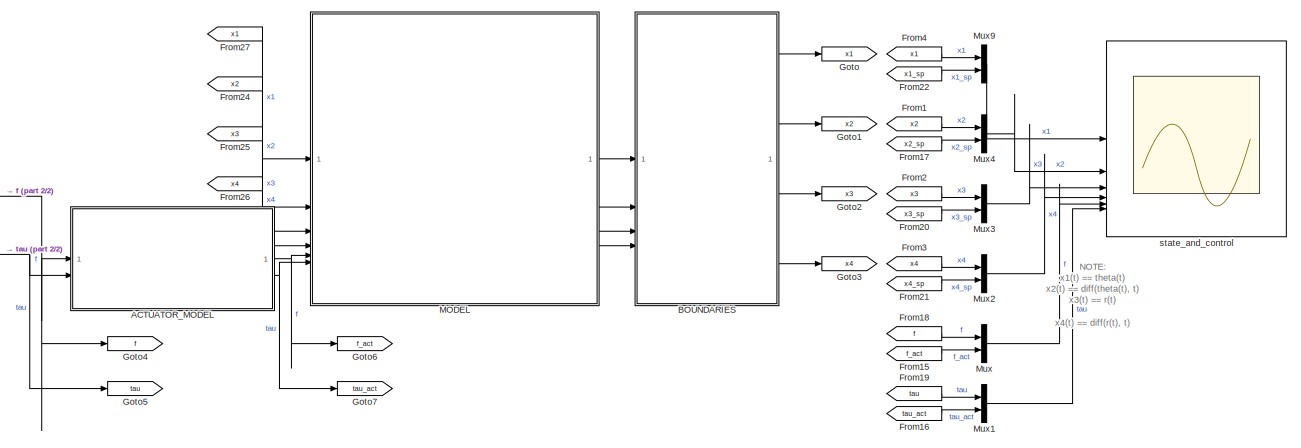
[diagram: root canvas - part 1/2, top right region]
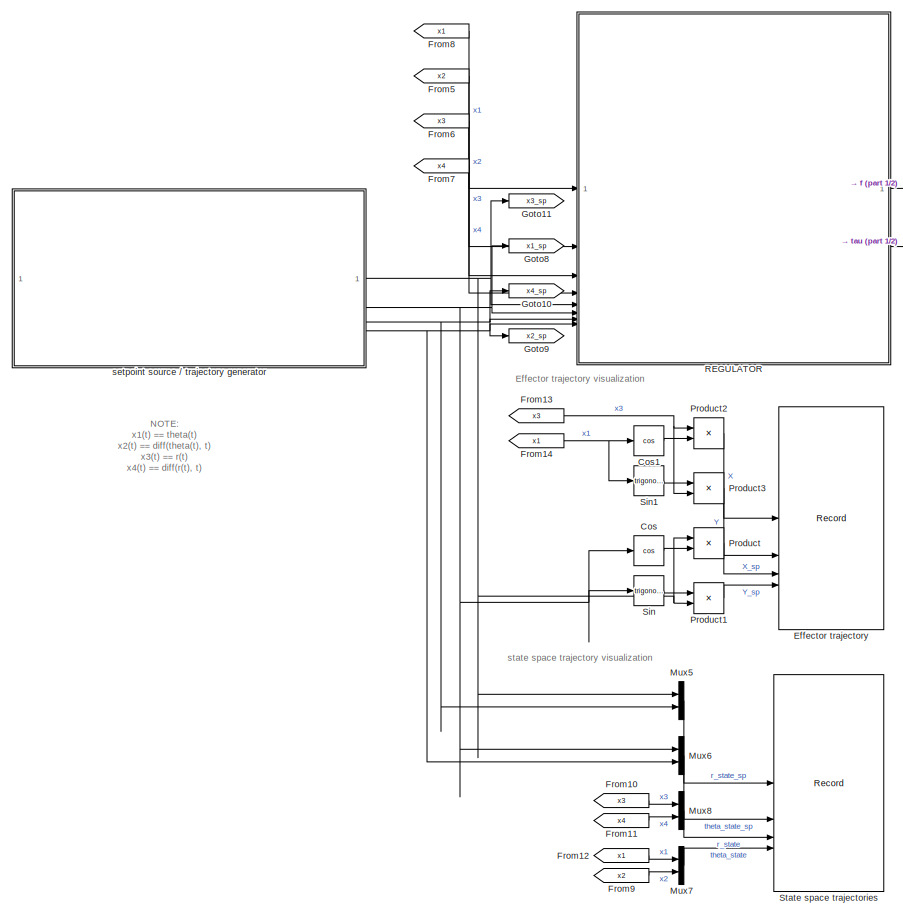
[diagram: root canvas - part 2/2, left side, full height]
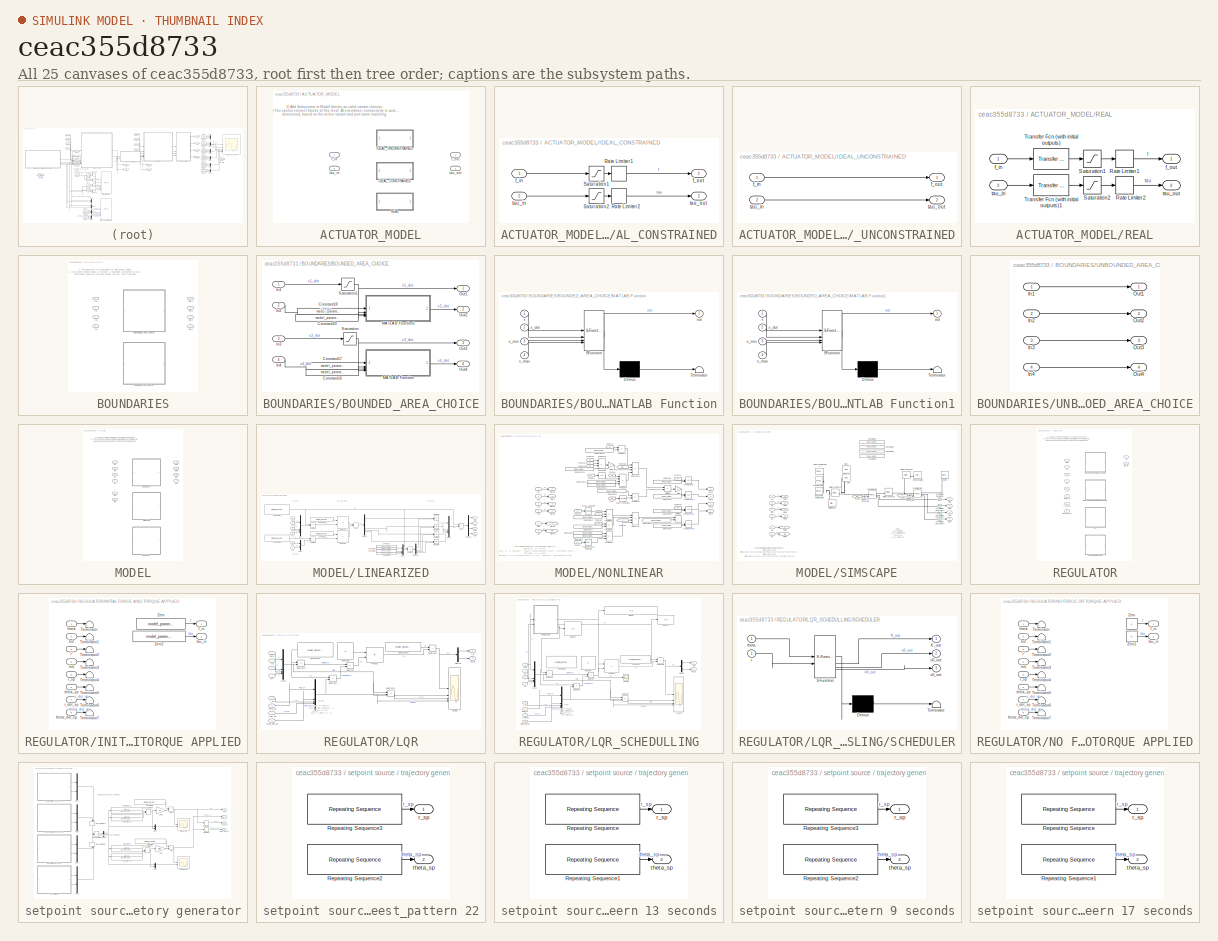
[diagram: thumbnail index - all 25 canvases of the model, root first then tree order]
MODEL slx_ceac355d8733
KIND model
CONFIG AbsTol = auto
CONFIG EnableMultiTasking = off
CONFIG FixedStep = 0.001
CONFIG MaxStep = 0.001
CONFIG MinStep = auto
CONFIG RelTol = 1e-3
CONFIG SampleTimeConstraint = Unconstrained
CONFIG SolverName = ode45
CONFIG StartTime = 0
CONFIG StopTime = 22
BLOCK [SubSystem] ACTUATOR_MODEL
  Variant = on
BLOCK [SubSystem] ACTUATOR_MODEL/IDEAL_CONSTRAINED
  VariantControl = ACTUATOR_CHOICE == "IDEAL_CONSTRAINED"
BLOCK [RateLimiter] ACTUATOR_MODEL/IDEAL_CONSTRAINED/Rate Limiter1
  FallingSlewLimit = -model_parameters.linear_actuator.slew_rate
  InitialCondition = model_parameters.initial.f
  RisingSlewLimit = model_parameters.linear_actuator.slew_rate
  SampleTimeMode = inherited
BLOCK [RateLimiter] ACTUATOR_MODEL/IDEAL_CONSTRAINED/Rate Limiter2
  FallingSlewLimit = -model_parameters.angular_actuator.slew_rate
  InitialCondition = model_parameters.initial.tau
  RisingSlewLimit = model_parameters.angular_actuator.slew_rate
  SampleTimeMode = inherited
BLOCK [Saturate] ACTUATOR_MODEL/IDEAL_CONSTRAINED/Saturation1
  LowerLimit = model_parameters.linear_actuator.saturation_min
  UpperLimit = model_parameters.linear_actuator.saturation_max
BLOCK [Saturate] ACTUATOR_MODEL/IDEAL_CONSTRAINED/Saturation2
  LowerLimit = model_parameters.angular_actuator.saturation_min
  UpperLimit = model_parameters.angular_actuator.saturation_max
BLOCK [Inport] ACTUATOR_MODEL/IDEAL_CONSTRAINED/f_in
BLOCK [Outport] ACTUATOR_MODEL/IDEAL_CONSTRAINED/f_out
BLOCK [Inport] ACTUATOR_MODEL/IDEAL_CONSTRAINED/tau_in
  Port = 2
BLOCK [Outport] ACTUATOR_MODEL/IDEAL_CONSTRAINED/tau_out
  Port = 2
BLOCK [SubSystem] ACTUATOR_MODEL/IDEAL_UNCONSTRAINED
  VariantControl = ACTUATOR_CHOICE == "IDEAL_UNCONSTRAINED"
BLOCK [Inport] ACTUATOR_MODEL/IDEAL_UNCONSTRAINED/f_in
BLOCK [Outport] ACTUATOR_MODEL/IDEAL_UNCONSTRAINED/f_out
BLOCK [Inport] ACTUATOR_MODEL/IDEAL_UNCONSTRAINED/tau_in
  Port = 2
BLOCK [Outport] ACTUATOR_MODEL/IDEAL_UNCONSTRAINED/tau_out
  Port = 2
BLOCK [SubSystem] ACTUATOR_MODEL/REAL
  VariantControl = ACTUATOR_CHOICE == "REAL"
BLOCK [RateLimiter] ACTUATOR_MODEL/REAL/Rate Limiter1
  FallingSlewLimit = -model_parameters.linear_actuator.slew_rate
  InitialCondition = model_parameters.initial.f
  RisingSlewLimit = model_parameters.linear_actuator.slew_rate
  SampleTimeMode = inherited
BLOCK [RateLimiter] ACTUATOR_MODEL/REAL/Rate Limiter2
  FallingSlewLimit = -model_parameters.angular_actuator.slew_rate
  InitialCondition = model_parameters.initial.tau
  RisingSlewLimit = model_parameters.angular_actuator.slew_rate
  SampleTimeMode = inherited
BLOCK [Saturate] ACTUATOR_MODEL/REAL/Saturation1
  LowerLimit = model_parameters.linear_actuator.saturation_min
  UpperLimit = model_parameters.linear_actuator.saturation_max
BLOCK [Saturate] ACTUATOR_MODEL/REAL/Saturation2
  LowerLimit = model_parameters.angular_actuator.saturation_min
  UpperLimit = model_parameters.angular_actuator.saturation_max
BLOCK [Reference] ACTUATOR_MODEL/REAL/Transfer Fcn (with initial outputs)  REF=simulink_extras/Additional
Linear/Transfer Fcn
(with initial outputs)
  SourceBlock = simulink_extras/Additional\nLinear/Transfer Fcn\n(with initial outputs)
  SourceType = Transfer Function with Initial Outputs
BLOCK [Reference] ACTUATOR_MODEL/REAL/Transfer Fcn (with initial outputs)1  REF=simulink_extras/Additional
Linear/Transfer Fcn
(with initial outputs)
  SourceBlock = simulink_extras/Additional\nLinear/Transfer Fcn\n(with initial outputs)
  SourceType = Transfer Function with Initial Outputs
BLOCK [Inport] ACTUATOR_MODEL/REAL/f_in
BLOCK [Outport] ACTUATOR_MODEL/REAL/f_out
BLOCK [Inport] ACTUATOR_MODEL/REAL/tau_in
  Port = 2
BLOCK [Outport] ACTUATOR_MODEL/REAL/tau_out
  Port = 2
BLOCK [Inport] ACTUATOR_MODEL/f_in
BLOCK [Outport] ACTUATOR_MODEL/f_out
BLOCK [Inport] ACTUATOR_MODEL/tau_in
  Port = 2
BLOCK [Outport] ACTUATOR_MODEL/tau_out
  Port = 2
BLOCK [SubSystem] BOUNDARIES
  Variant = on
BLOCK [SubSystem] BOUNDARIES/BOUNDED_AREA_CHOICE
  VariantControl = BOUNDARY_CHOICE == "BOUNDED"
BLOCK [Constant] BOUNDARIES/BOUNDED_AREA_CHOICE/Constant16
  Value = model_parameters.r_max
BLOCK [Constant] BOUNDARIES/BOUNDED_AREA_CHOICE/Constant17
  Value = model_parameters.r_min
BLOCK [Constant] BOUNDARIES/BOUNDED_AREA_CHOICE/Constant18
  Value = model_parameters.theta_min
BLOCK [Constant] BOUNDARIES/BOUNDED_AREA_CHOICE/Constant19
  Value = model_parameters.theta_max
BLOCK [Inport] BOUNDARIES/BOUNDED_AREA_CHOICE/In1
BLOCK [Inport] BOUNDARIES/BOUNDED_AREA_CHOICE/In2
  Port = 2
BLOCK [Inport] BOUNDARIES/BOUNDED_AREA_CHOICE/In3
  Port = 3
BLOCK [Inport] BOUNDARIES/BOUNDED_AREA_CHOICE/In4
  Port = 4
BLOCK [SubSystem] BOUNDARIES/BOUNDED_AREA_CHOICE/MATLAB Function
  ErrorFcn = Stateflow.Translate.translate
  PermitHierarchicalResolution = ExplicitOnly
  SFBlockType = MATLAB Function
  TreatAsAtomicUnit = on
BLOCK [Demux] BOUNDARIES/BOUNDED_AREA_CHOICE/MATLAB Function/ Demux 
  Outputs = 1
BLOCK [S-Function] BOUNDARIES/BOUNDED_AREA_CHOICE/MATLAB Function/ SFunction 
  EnableBusSupport = off
  FunctionName = sf_sfun
  PortCounts = [4 2]
  SFcnIsStateOwnerBlock = off
  SFunctionDeploymentMode = off
  Tag = Stateflow S-Function 2
BLOCK [Terminator] BOUNDARIES/BOUNDED_AREA_CHOICE/MATLAB Function/ Terminator 
BLOCK [Outport] BOUNDARIES/BOUNDED_AREA_CHOICE/MATLAB Function/out
BLOCK [Inport] BOUNDARIES/BOUNDED_AREA_CHOICE/MATLAB Function/x
BLOCK [Inport] BOUNDARIES/BOUNDED_AREA_CHOICE/MATLAB Function/x_dot
  Port = 2
BLOCK [Inport] BOUNDARIES/BOUNDED_AREA_CHOICE/MATLAB Function/x_max
  Port = 4
BLOCK [Inport] BOUNDARIES/BOUNDED_AREA_CHOICE/MATLAB Function/x_min
  Port = 3
BLOCK [SubSystem] BOUNDARIES/BOUNDED_AREA_CHOICE/MATLAB Function1
  ErrorFcn = Stateflow.Translate.translate
  PermitHierarchicalResolution = ExplicitOnly
  SFBlockType = MATLAB Function
  TreatAsAtomicUnit = on
BLOCK [Demux] BOUNDARIES/BOUNDED_AREA_CHOICE/MATLAB Function1/ Demux 
  Outputs = 1
BLOCK [S-Function] BOUNDARIES/BOUNDED_AREA_CHOICE/MATLAB Function1/ SFunction 
  EnableBusSupport = off
  FunctionName = sf_sfun
  PortCounts = [4 2]
  SFcnIsStateOwnerBlock = off
  SFunctionDeploymentMode = off
  Tag = Stateflow S-Function 1
BLOCK [Terminator] BOUNDARIES/BOUNDED_AREA_CHOICE/MATLAB Function1/ Terminator 
BLOCK [Outport] BOUNDARIES/BOUNDED_AREA_CHOICE/MATLAB Function1/out
BLOCK [Inport] BOUNDARIES/BOUNDED_AREA_CHOICE/MATLAB Function1/x
BLOCK [Inport] BOUNDARIES/BOUNDED_AREA_CHOICE/MATLAB Function1/x_dot
  Port = 2
BLOCK [Inport] BOUNDARIES/BOUNDED_AREA_CHOICE/MATLAB Function1/x_max
  Port = 4
BLOCK [Inport] BOUNDARIES/BOUNDED_AREA_CHOICE/MATLAB Function1/x_min
  Port = 3
BLOCK [Outport] BOUNDARIES/BOUNDED_AREA_CHOICE/Out1
BLOCK [Outport] BOUNDARIES/BOUNDED_AREA_CHOICE/Out2
  Port = 2
BLOCK [Outport] BOUNDARIES/BOUNDED_AREA_CHOICE/Out3
  Port = 3
BLOCK [Outport] BOUNDARIES/BOUNDED_AREA_CHOICE/Out4
  Port = 4
BLOCK [Saturate] BOUNDARIES/BOUNDED_AREA_CHOICE/Saturation
  LowerLimit = model_parameters.r_min
  UpperLimit = model_parameters.r_max
BLOCK [Saturate] BOUNDARIES/BOUNDED_AREA_CHOICE/Saturation1
  LowerLimit = model_parameters.theta_min
  UpperLimit = model_parameters.theta_max
BLOCK [Inport] BOUNDARIES/In1
BLOCK [Inport] BOUNDARIES/In2
  Port = 2
BLOCK [Inport] BOUNDARIES/In3
  Port = 3
BLOCK [Inport] BOUNDARIES/In4
  Port = 4
BLOCK [Outport] BOUNDARIES/Out1
BLOCK [Outport] BOUNDARIES/Out2
  Port = 2
BLOCK [Outport] BOUNDARIES/Out3
  Port = 3
BLOCK [Outport] BOUNDARIES/Out4
  Port = 4
BLOCK [SubSystem] BOUNDARIES/UNBOUNDED_AREA_CHOICE
  VariantControl = BOUNDARY_CHOICE == "UNBOUNDED"
BLOCK [Inport] BOUNDARIES/UNBOUNDED_AREA_CHOICE/In1
BLOCK [Inport] BOUNDARIES/UNBOUNDED_AREA_CHOICE/In2
  Port = 2
BLOCK [Inport] BOUNDARIES/UNBOUNDED_AREA_CHOICE/In3
  Port = 3
BLOCK [Inport] BOUNDARIES/UNBOUNDED_AREA_CHOICE/In4
  Port = 4
BLOCK [Outport] BOUNDARIES/UNBOUNDED_AREA_CHOICE/Out1
BLOCK [Outport] BOUNDARIES/UNBOUNDED_AREA_CHOICE/Out2
  Port = 2
BLOCK [Outport] BOUNDARIES/UNBOUNDED_AREA_CHOICE/Out3
  Port = 3
BLOCK [Outport] BOUNDARIES/UNBOUNDED_AREA_CHOICE/Out4
  Port = 4
BLOCK [Trigonometry] Cos
  Operator = cos
BLOCK [Trigonometry] Cos1
  Operator = cos
BLOCK [Record] Effector trajectory
  CompatibilityTag = XY
  FileSettingsInternal = {"entries":[{"content":{"excelSettings":{"content":{},"type":"Streamout.ExcelSettings"},"parquetSettings":{"content":{},"type":"Streamout.ParquetSettings"}},"type":"Streamout.FileSettingStorage","uuid":""}],"packageUris":["http:\/\/schema.mathworks.com\/mf0\/streamout_blocks\/R2020a"],"version":"1.0"}
  FrameSettings = [0, 0, 0, 0]
  Layout = [1 2]
  NumPorts = 4.0
  SignalsInternal = {"entries":[{"content":{"signals":[{"content":{"blockPath":[],"dimensions":[1],"domain":"","lineColor":"#0072bd","lineWidth":2,"plots":[ 1 ],"port":1,"sid":[""],"signalID":1,"signalName":"X"},"type":"RecordBlkView.Signal","uuid":""},{"content":{"blockPath":[],"dimensions":[1],"domain":"","lineColor":"#d95319","lineWidth":2,"plots":[ 1 ],"port":2,"sid":[""],"signalID":2,"signalName":"Y"},"type":"Re...<+578ch>
  VisualizationBindings = {"xyplotplugin":{"info":[{"series":[{"bindingParametersList":[{"parameter":"X-Axis","signalID":1,"signalName":"X"},{"parameter":"Y-Axis","signalID":2,"signalName":"Y"}],"seriesID":0},{"bindingParametersList":[{"parameter":"X-Axis","signalID":3,"signalName":"X_sp"},{"parameter":"Y-Axis","signalID":4,"signalName":"Y_sp"}],"seriesID":1}],"subplotID":1}]}}
BLOCK [From] From1
  GotoTag = x2
BLOCK [From] From10
  Commented = on
  GotoTag = x3
BLOCK [From] From11
  Commented = on
  GotoTag = x4
BLOCK [From] From12
  Commented = on
  GotoTag = x1
BLOCK [From] From13
  GotoTag = x3
BLOCK [From] From14
  GotoTag = x1
BLOCK [From] From15
  GotoTag = f_act
BLOCK [From] From16
  GotoTag = tau_act
BLOCK [From] From17
  GotoTag = x2_sp
BLOCK [From] From18
  GotoTag = f
BLOCK [From] From19
  GotoTag = tau
BLOCK [From] From2
  GotoTag = x3
BLOCK [From] From20
  GotoTag = x3_sp
BLOCK [From] From21
  GotoTag = x4_sp
BLOCK [From] From22
  GotoTag = x1_sp
BLOCK [From] From24
  GotoTag = x2
BLOCK [From] From25
  GotoTag = x3
BLOCK [From] From26
  GotoTag = x4
BLOCK [From] From27
  GotoTag = x1
BLOCK [From] From3
  GotoTag = x4
BLOCK [From] From4
  GotoTag = x1
BLOCK [From] From5
  GotoTag = x2
BLOCK [From] From6
  GotoTag = x3
BLOCK [From] From7
  GotoTag = x4
BLOCK [From] From8
  GotoTag = x1
BLOCK [From] From9
  Commented = on
  GotoTag = x2
BLOCK [Goto] Goto
  GotoTag = x1
BLOCK [Goto] Goto1
  GotoTag = x2
BLOCK [Goto] Goto10
  GotoTag = x4_sp
BLOCK [Goto] Goto11
  GotoTag = x3_sp
BLOCK [Goto] Goto2
  GotoTag = x3
BLOCK [Goto] Goto3
  GotoTag = x4
BLOCK [Goto] Goto4
  GotoTag = f
BLOCK [Goto] Goto5
  GotoTag = tau
BLOCK [Goto] Goto6
  GotoTag = f_act
BLOCK [Goto] Goto7
  GotoTag = tau_act
BLOCK [Goto] Goto8
  GotoTag = x1_sp
BLOCK [Goto] Goto9
  GotoTag = x2_sp
BLOCK [SubSystem] MODEL
  Variant = on
BLOCK [Inport] MODEL/In1
BLOCK [Inport] MODEL/In2
  Port = 2
BLOCK [Inport] MODEL/In3
  Port = 3
BLOCK [Inport] MODEL/In4
  Port = 4
BLOCK [Inport] MODEL/In5
  Port = 5
BLOCK [Inport] MODEL/In6
  Port = 6
BLOCK [SubSystem] MODEL/LINEARIZED
  VariantControl = MODEL_CHOICE == "LINEARIZED"
BLOCK [Sum] MODEL/LINEARIZED/Add
  IconShape = rectangular
BLOCK [Sum] MODEL/LINEARIZED/Add1
  IconShape = rectangular
BLOCK [Constant] MODEL/LINEARIZED/Constant
  Value = model_parameters.initial.x1
BLOCK [Constant] MODEL/LINEARIZED/Constant1
  Value = model_parameters.linearized.B
  VectorParams1D = off
BLOCK [Constant] MODEL/LINEARIZED/Constant18
  Value = model_parameters.linearized.A
  VectorParams1D = off
BLOCK [Constant] MODEL/LINEARIZED/Constant2
  Value = model_parameters.initial.x2
BLOCK [Constant] MODEL/LINEARIZED/Constant20
  Value = model_parameters.linearized.u0
  VectorParams1D = off
BLOCK [Constant] MODEL/LINEARIZED/Constant21
  Value = model_parameters.linearized.x0
  VectorParams1D = off
BLOCK [Constant] MODEL/LINEARIZED/Constant3
  Value = model_parameters.initial.x4
BLOCK [Constant] MODEL/LINEARIZED/Constant5
  Value = model_parameters.initial.x3
BLOCK [Demux] MODEL/LINEARIZED/Demux
BLOCK [Demux] MODEL/LINEARIZED/Demux1
BLOCK [Demux] MODEL/LINEARIZED/Demux2
BLOCK [Inport] MODEL/LINEARIZED/In1
BLOCK [Inport] MODEL/LINEARIZED/In2
  Port = 2
BLOCK [Inport] MODEL/LINEARIZED/In3
  Port = 3
BLOCK [Inport] MODEL/LINEARIZED/In4
  Port = 4
BLOCK [Inport] MODEL/LINEARIZED/In5
  Port = 5
BLOCK [Inport] MODEL/LINEARIZED/In6
  Port = 6
BLOCK [Integrator] MODEL/LINEARIZED/Integrator4
  InitialConditionSource = external
BLOCK [Integrator] MODEL/LINEARIZED/Integrator5
  InitialConditionSource = external
BLOCK [Integrator] MODEL/LINEARIZED/Integrator6
  InitialConditionSource = external
BLOCK [Integrator] MODEL/LINEARIZED/Integrator7
  InitialConditionSource = external
BLOCK [Mux] MODEL/LINEARIZED/Mux
  DisplayOption = bar
BLOCK [Mux] MODEL/LINEARIZED/Mux1
  DisplayOption = bar
  Inputs = 2
BLOCK [Mux] MODEL/LINEARIZED/Mux2
  DisplayOption = bar
BLOCK [Mux] MODEL/LINEARIZED/Mux3
  DisplayOption = bar
BLOCK [Outport] MODEL/LINEARIZED/Out1
BLOCK [Outport] MODEL/LINEARIZED/Out2
  Port = 2
BLOCK [Outport] MODEL/LINEARIZED/Out3
  Port = 3
BLOCK [Outport] MODEL/LINEARIZED/Out4
  Port = 4
BLOCK [Product] MODEL/LINEARIZED/Product1
  Multiplication = Matrix(*)
BLOCK [Product] MODEL/LINEARIZED/Product8
  Multiplication = Matrix(*)
BLOCK [Sum] MODEL/LINEARIZED/Subtract1
  IconShape = rectangular
  Inputs = -+
BLOCK [Sum] MODEL/LINEARIZED/Subtract2
  IconShape = rectangular
  Inputs = -+
BLOCK [Sum] MODEL/LINEARIZED/Subtract3
  IconShape = rectangular
  Inputs = -+
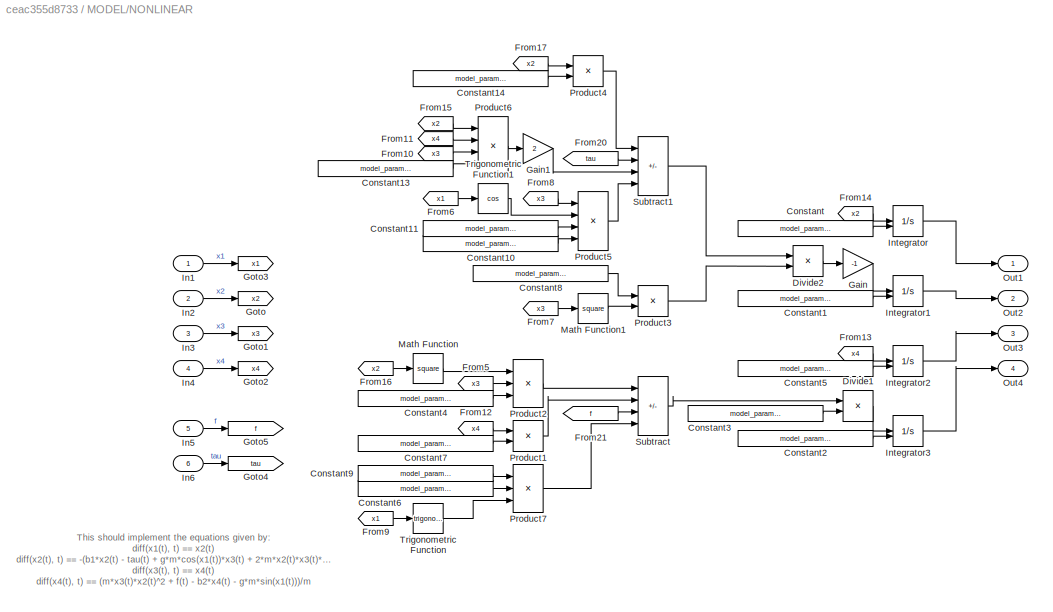
BLOCK [SubSystem] MODEL/NONLINEAR
  VariantControl = MODEL_CHOICE == "NONLINEAR"
BLOCK [Constant] MODEL/NONLINEAR/Constant
  Value = model_parameters.initial.x1
BLOCK [Constant] MODEL/NONLINEAR/Constant1
  Value = model_parameters.initial.x2
BLOCK [Constant] MODEL/NONLINEAR/Constant10
  Value = model_parameters.g
BLOCK [Constant] MODEL/NONLINEAR/Constant11
  Value = model_parameters.m
BLOCK [Constant] MODEL/NONLINEAR/Constant13
  Value = model_parameters.m
BLOCK [Constant] MODEL/NONLINEAR/Constant14
  Value = model_parameters.b1
BLOCK [Constant] MODEL/NONLINEAR/Constant2
  Value = model_parameters.initial.x4
BLOCK [Constant] MODEL/NONLINEAR/Constant3
  Value = model_parameters.m
BLOCK [Constant] MODEL/NONLINEAR/Constant4
  Value = model_parameters.m
BLOCK [Constant] MODEL/NONLINEAR/Constant5
  Value = model_parameters.initial.x3
BLOCK [Constant] MODEL/NONLINEAR/Constant6
  Value = model_parameters.g
BLOCK [Constant] MODEL/NONLINEAR/Constant7
  Value = model_parameters.b2
BLOCK [Constant] MODEL/NONLINEAR/Constant8
  Value = model_parameters.m
BLOCK [Constant] MODEL/NONLINEAR/Constant9
  Value = model_parameters.m
BLOCK [Product] MODEL/NONLINEAR/Divide1
  Inputs = */
BLOCK [Product] MODEL/NONLINEAR/Divide2
  Inputs = */
BLOCK [From] MODEL/NONLINEAR/From10
  GotoTag = x3
BLOCK [From] MODEL/NONLINEAR/From11
  GotoTag = x4
BLOCK [From] MODEL/NONLINEAR/From12
  GotoTag = x4
BLOCK [From] MODEL/NONLINEAR/From13
  GotoTag = x4
BLOCK [From] MODEL/NONLINEAR/From14
  GotoTag = x2
BLOCK [From] MODEL/NONLINEAR/From15
  GotoTag = x2
BLOCK [From] MODEL/NONLINEAR/From16
  GotoTag = x2
BLOCK [From] MODEL/NONLINEAR/From17
  GotoTag = x2
BLOCK [From] MODEL/NONLINEAR/From20
  GotoTag = tau
BLOCK [From] MODEL/NONLINEAR/From21
  GotoTag = f
BLOCK [From] MODEL/NONLINEAR/From5
  GotoTag = x3
BLOCK [From] MODEL/NONLINEAR/From6
  GotoTag = x1
BLOCK [From] MODEL/NONLINEAR/From7
  GotoTag = x3
BLOCK [From] MODEL/NONLINEAR/From8
  GotoTag = x3
BLOCK [From] MODEL/NONLINEAR/From9
  GotoTag = x1
BLOCK [Gain] MODEL/NONLINEAR/Gain
  Gain = -1
BLOCK [Gain] MODEL/NONLINEAR/Gain1
  Gain = 2
BLOCK [Goto] MODEL/NONLINEAR/Goto
  GotoTag = x2
BLOCK [Goto] MODEL/NONLINEAR/Goto1
  GotoTag = x3
BLOCK [Goto] MODEL/NONLINEAR/Goto2
  GotoTag = x4
BLOCK [Goto] MODEL/NONLINEAR/Goto3
  GotoTag = x1
BLOCK [Goto] MODEL/NONLINEAR/Goto4
  GotoTag = tau
BLOCK [Goto] MODEL/NONLINEAR/Goto5
  GotoTag = f
BLOCK [Inport] MODEL/NONLINEAR/In1
BLOCK [Inport] MODEL/NONLINEAR/In2
  Port = 2
BLOCK [Inport] MODEL/NONLINEAR/In3
  Port = 3
BLOCK [Inport] MODEL/NONLINEAR/In4
  Port = 4
BLOCK [Inport] MODEL/NONLINEAR/In5
  Port = 5
BLOCK [Inport] MODEL/NONLINEAR/In6
  Port = 6
BLOCK [Integrator] MODEL/NONLINEAR/Integrator
  InitialConditionSource = external
BLOCK [Integrator] MODEL/NONLINEAR/Integrator1
  InitialConditionSource = external
BLOCK [Integrator] MODEL/NONLINEAR/Integrator2
  InitialConditionSource = external
BLOCK [Integrator] MODEL/NONLINEAR/Integrator3
  InitialConditionSource = external
BLOCK [Math] MODEL/NONLINEAR/Math Function
  Operator = square
BLOCK [Math] MODEL/NONLINEAR/Math Function1
  Operator = square
BLOCK [Outport] MODEL/NONLINEAR/Out1
BLOCK [Outport] MODEL/NONLINEAR/Out2
  Port = 2
BLOCK [Outport] MODEL/NONLINEAR/Out3
  Port = 3
BLOCK [Outport] MODEL/NONLINEAR/Out4
  Port = 4
BLOCK [Product] MODEL/NONLINEAR/Product1
BLOCK [Product] MODEL/NONLINEAR/Product2
  Inputs = 3
BLOCK [Product] MODEL/NONLINEAR/Product3
BLOCK [Product] MODEL/NONLINEAR/Product4
BLOCK [Product] MODEL/NONLINEAR/Product5
  Inputs = 4
BLOCK [Product] MODEL/NONLINEAR/Product6
  Inputs = 4
BLOCK [Product] MODEL/NONLINEAR/Product7
  Inputs = 3
BLOCK [Sum] MODEL/NONLINEAR/Subtract
  IconShape = rectangular
  Inputs = +-+-
BLOCK [Sum] MODEL/NONLINEAR/Subtract1
  IconShape = rectangular
  Inputs = +-++
BLOCK [Trigonometry] MODEL/NONLINEAR/Trigonometric Function
BLOCK [Trigonometry] MODEL/NONLINEAR/Trigonometric Function1
  Operator = cos
BLOCK [Outport] MODEL/Out1
BLOCK [Outport] MODEL/Out2
  Port = 2
BLOCK [Outport] MODEL/Out3
  Port = 3
BLOCK [Outport] MODEL/Out4
  Port = 4
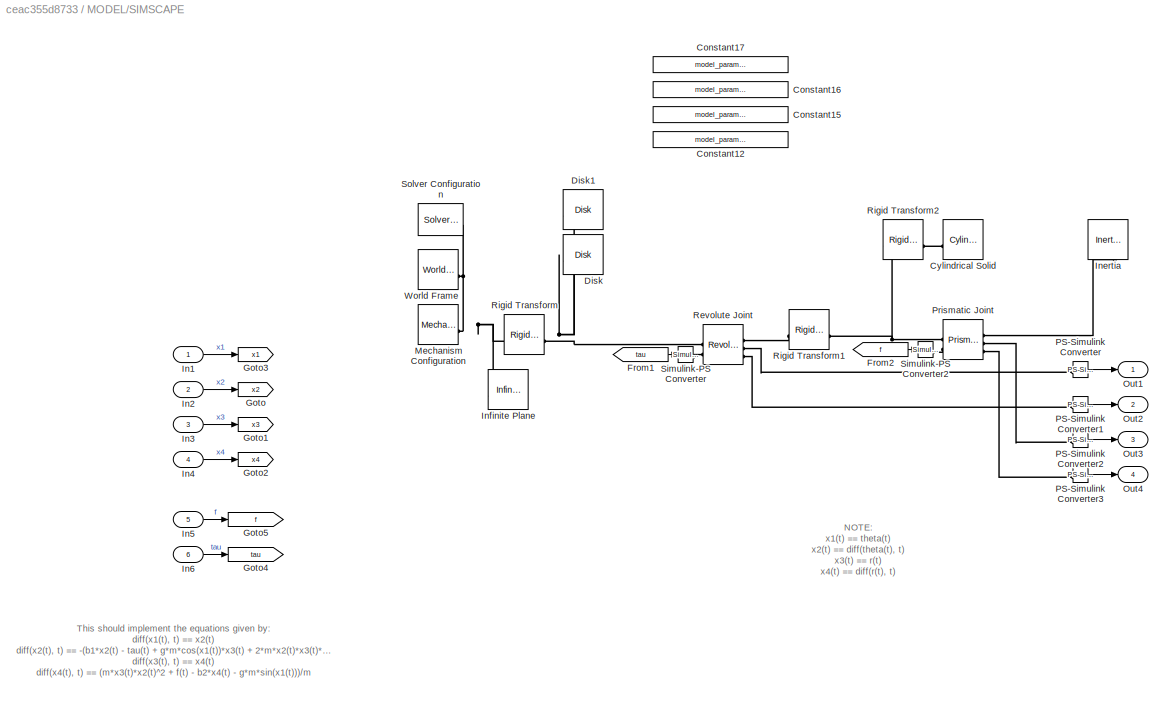
BLOCK [SubSystem] MODEL/SIMSCAPE
  VariantControl = MODEL_CHOICE == "SIMSCAPE"
BLOCK [Constant] MODEL/SIMSCAPE/Constant12
  Commented = on
  Value = model_parameters.m
BLOCK [Constant] MODEL/SIMSCAPE/Constant15
  Commented = on
  Value = model_parameters.b1
BLOCK [Constant] MODEL/SIMSCAPE/Constant16
  Commented = on
  Value = model_parameters.g
BLOCK [Constant] MODEL/SIMSCAPE/Constant17
  Commented = on
  Value = model_parameters.b2
BLOCK [Reference] MODEL/SIMSCAPE/Cylindrical Solid  REF=sm_lib/Body Elements/Cylindrical Solid
  NameLocation = top
  SourceBlock = sm_lib/Body Elements/Cylindrical Solid
  SourceType = Cylindrical Solid
BLOCK [Reference] MODEL/SIMSCAPE/Disk  REF=sm_lib/Curves and Surfaces/Disk
  SourceBlock = sm_lib/Curves and Surfaces/Disk
  SourceType = Disk
BLOCK [Reference] MODEL/SIMSCAPE/Disk1  REF=sm_lib/Curves and Surfaces/Disk
  SourceBlock = sm_lib/Curves and Surfaces/Disk
  SourceType = Disk
BLOCK [From] MODEL/SIMSCAPE/From1
  GotoTag = tau
BLOCK [From] MODEL/SIMSCAPE/From2
  GotoTag = f
BLOCK [Goto] MODEL/SIMSCAPE/Goto
  GotoTag = x2
BLOCK [Goto] MODEL/SIMSCAPE/Goto1
  GotoTag = x3
BLOCK [Goto] MODEL/SIMSCAPE/Goto2
  GotoTag = x4
BLOCK [Goto] MODEL/SIMSCAPE/Goto3
  GotoTag = x1
BLOCK [Goto] MODEL/SIMSCAPE/Goto4
  GotoTag = tau
BLOCK [Goto] MODEL/SIMSCAPE/Goto5
  GotoTag = f
BLOCK [Inport] MODEL/SIMSCAPE/In1
BLOCK [Inport] MODEL/SIMSCAPE/In2
  Port = 2
BLOCK [Inport] MODEL/SIMSCAPE/In3
  Port = 3
BLOCK [Inport] MODEL/SIMSCAPE/In4
  Port = 4
BLOCK [Inport] MODEL/SIMSCAPE/In5
  Port = 5
BLOCK [Inport] MODEL/SIMSCAPE/In6
  Port = 6
BLOCK [Reference] MODEL/SIMSCAPE/Inertia  REF=sm_lib/Body Elements/Inertia
  NameLocation = left
  SourceBlock = sm_lib/Body Elements/Inertia
  SourceType = Inertia
BLOCK [Reference] MODEL/SIMSCAPE/Infinite Plane  REF=sm_lib/Curves and Surfaces/Infinite Plane
  SourceBlock = sm_lib/Curves and Surfaces/Infinite Plane
  SourceType = Infinite Plane
BLOCK [Reference] MODEL/SIMSCAPE/Mechanism Configuration  REF=sm_lib/Utilities/Mechanism
Configuration
  SourceBlock = sm_lib/Utilities/Mechanism\nConfiguration
  SourceType = Mechanism\nConfiguration
BLOCK [Outport] MODEL/SIMSCAPE/Out1
BLOCK [Outport] MODEL/SIMSCAPE/Out2
  Port = 2
BLOCK [Outport] MODEL/SIMSCAPE/Out3
  Port = 3
BLOCK [Outport] MODEL/SIMSCAPE/Out4
  Port = 4
BLOCK [Reference] MODEL/SIMSCAPE/PS-Simulink Converter  REF=nesl_utility/PS-Simulink
Converter
  SourceBlock = nesl_utility/PS-Simulink\nConverter
  SourceType = PS-Simulink\nConverter
BLOCK [Reference] MODEL/SIMSCAPE/PS-Simulink Converter1  REF=nesl_utility/PS-Simulink
Converter
  SourceBlock = nesl_utility/PS-Simulink\nConverter
  SourceType = PS-Simulink\nConverter
BLOCK [Reference] MODEL/SIMSCAPE/PS-Simulink Converter2  REF=nesl_utility/PS-Simulink
Converter
  SourceBlock = nesl_utility/PS-Simulink\nConverter
  SourceType = PS-Simulink\nConverter
BLOCK [Reference] MODEL/SIMSCAPE/PS-Simulink Converter3  REF=nesl_utility/PS-Simulink
Converter
  SourceBlock = nesl_utility/PS-Simulink\nConverter
  SourceType = PS-Simulink\nConverter
BLOCK [Reference] MODEL/SIMSCAPE/Prismatic Joint  REF=sm_lib/Joints/Prismatic
Joint
  SourceBlock = sm_lib/Joints/Prismatic\nJoint
  SourceType = Prismatic\nJoint
BLOCK [Reference] MODEL/SIMSCAPE/Revolute Joint  REF=sm_lib/Joints/Revolute Joint
  SourceBlock = sm_lib/Joints/Revolute Joint
  SourceType = Revolute Joint
BLOCK [Reference] MODEL/SIMSCAPE/Rigid Transform  REF=sm_lib/Frames and
Transforms/Rigid
Transform
  SourceBlock = sm_lib/Frames and\nTransforms/Rigid\nTransform
  SourceType = Rigid\nTransform
BLOCK [Reference] MODEL/SIMSCAPE/Rigid Transform1  REF=sm_lib/Frames and
Transforms/Rigid
Transform
  NameLocation = right
  SourceBlock = sm_lib/Frames and\nTransforms/Rigid\nTransform
  SourceType = Rigid\nTransform
BLOCK [Reference] MODEL/SIMSCAPE/Rigid Transform2  REF=sm_lib/Frames and
Transforms/Rigid
Transform
  NameLocation = right
  SourceBlock = sm_lib/Frames and\nTransforms/Rigid\nTransform
  SourceType = Rigid\nTransform
BLOCK [Reference] MODEL/SIMSCAPE/Simulink-PS Converter  REF=nesl_utility/Simulink-PS
Converter
  SourceBlock = nesl_utility/Simulink-PS\nConverter
  SourceType = Simulink-PS\nConverter
BLOCK [Reference] MODEL/SIMSCAPE/Simulink-PS Converter2  REF=nesl_utility/Simulink-PS
Converter
  SourceBlock = nesl_utility/Simulink-PS\nConverter
  SourceType = Simulink-PS\nConverter
BLOCK [Reference] MODEL/SIMSCAPE/Solver Configuration  REF=nesl_utility/Solver
Configuration
  SourceBlock = nesl_utility/Solver\nConfiguration
  SourceType = Solver\nConfiguration
BLOCK [Reference] MODEL/SIMSCAPE/World Frame  REF=sm_lib/Frames and
Transforms/World Frame
  SourceBlock = sm_lib/Frames and\nTransforms/World Frame
  SourceType = World Frame
BLOCK [Mux] Mux
  DisplayOption = bar
  Inputs = 2
BLOCK [Mux] Mux1
  DisplayOption = bar
  Inputs = 2
BLOCK [Mux] Mux2
  DisplayOption = bar
  Inputs = 2
BLOCK [Mux] Mux3
  DisplayOption = bar
  Inputs = 2
BLOCK [Mux] Mux4
  DisplayOption = bar
  Inputs = 2
BLOCK [Mux] Mux5
  Commented = on
  DisplayOption = bar
  Inputs = 2
BLOCK [Mux] Mux6
  Commented = on
  DisplayOption = bar
  Inputs = 2
BLOCK [Mux] Mux7
  Commented = on
  DisplayOption = bar
  Inputs = 2
BLOCK [Mux] Mux8
  Commented = on
  DisplayOption = bar
  Inputs = 2
BLOCK [Mux] Mux9
  DisplayOption = bar
  Inputs = 2
BLOCK [Product] Product
BLOCK [Product] Product1
BLOCK [Product] Product2
BLOCK [Product] Product3
BLOCK [SubSystem] REGULATOR
  Variant = on
BLOCK [SubSystem] REGULATOR/INITIAL FORCE AND TORQUE APPLIED
  VariantControl = REGULATOR_CHOICE == "INITIAL_FORCE_AND_TORQUE_APPLIED"
BLOCK [Inport] REGULATOR/INITIAL FORCE AND TORQUE APPLIED/In2
  Port = 2
BLOCK [Inport] REGULATOR/INITIAL FORCE AND TORQUE APPLIED/In4
  Port = 4
BLOCK [Terminator] REGULATOR/INITIAL FORCE AND TORQUE APPLIED/Terminator
BLOCK [Terminator] REGULATOR/INITIAL FORCE AND TORQUE APPLIED/Terminator1
BLOCK [Terminator] REGULATOR/INITIAL FORCE AND TORQUE APPLIED/Terminator2
BLOCK [Terminator] REGULATOR/INITIAL FORCE AND TORQUE APPLIED/Terminator3
BLOCK [Terminator] REGULATOR/INITIAL FORCE AND TORQUE APPLIED/Terminator4
BLOCK [Terminator] REGULATOR/INITIAL FORCE AND TORQUE APPLIED/Terminator5
BLOCK [Terminator] REGULATOR/INITIAL FORCE AND TORQUE APPLIED/Terminator6
BLOCK [Terminator] REGULATOR/INITIAL FORCE AND TORQUE APPLIED/Terminator7
BLOCK [Constant] REGULATOR/INITIAL FORCE AND TORQUE APPLIED/Zero
  OutDataTypeStr = Inherit: Inherit via back propagation
  Value = model_parameters.initial.f
BLOCK [Constant] REGULATOR/INITIAL FORCE AND TORQUE APPLIED/Zero2
  OutDataTypeStr = Inherit: Inherit via back propagation
  Value = model_parameters.initial.tau
BLOCK [Outport] REGULATOR/INITIAL FORCE AND TORQUE APPLIED/f_in
BLOCK [Inport] REGULATOR/INITIAL FORCE AND TORQUE APPLIED/r
  Port = 3
BLOCK [Inport] REGULATOR/INITIAL FORCE AND TORQUE APPLIED/r_dot_sp
  Port = 7
BLOCK [Inport] REGULATOR/INITIAL FORCE AND TORQUE APPLIED/r_sp
  Port = 5
BLOCK [Outport] REGULATOR/INITIAL FORCE AND TORQUE APPLIED/tau_in
  Port = 2
BLOCK [Inport] REGULATOR/INITIAL FORCE AND TORQUE APPLIED/theta
BLOCK [Inport] REGULATOR/INITIAL FORCE AND TORQUE APPLIED/theta_dot_sp
  Port = 8
BLOCK [Inport] REGULATOR/INITIAL FORCE AND TORQUE APPLIED/theta_sp
  Port = 6
BLOCK [Inport] REGULATOR/In2
  Port = 2
BLOCK [Inport] REGULATOR/In4
  Port = 4
BLOCK [SubSystem] REGULATOR/LQR
  VariantControl = REGULATOR_CHOICE == "LQR"
BLOCK [Constant] REGULATOR/LQR/Constant
  Value = -K
BLOCK [Constant] REGULATOR/LQR/Constant20
  Value = model_parameters.linearized.u0
  VectorParams1D = off
BLOCK [Constant] REGULATOR/LQR/Constant21
  NameLocation = top
  Value = model_parameters.linearized.x0
  VectorParams1D = off
BLOCK [Demux] REGULATOR/LQR/Demux
  Outputs = 2
BLOCK [Inport] REGULATOR/LQR/In2
  Port = 2
BLOCK [Inport] REGULATOR/LQR/In4
  Port = 4
BLOCK [Mux] REGULATOR/LQR/Mux1
  DisplayOption = bar
BLOCK [Mux] REGULATOR/LQR/Mux2
  DisplayOption = bar
BLOCK [Product] REGULATOR/LQR/Product
  Multiplication = Matrix(*)
BLOCK [Scope] REGULATOR/LQR/Scope
  ActiveDisplayYMaximum = 1
  ActiveDisplayYMinimum = -1
  DataLoggingVariableName = ScopeData1
  Floating = off
  GraphicalSettings = {"Style":{"BackgroundColor":[0.12941176470588237,0.12941176470588237,0.12941176470588237],"AxesColor":[0.07058823529411765,0.07058823529411765,0.07058823529411765],"LabelsColor":[0.8509803921568627,0.8509803921568627,0.8509803921568627],"PreserveColors":false,"Visible":[true,true,true,true,true,true,true,true,true,true,true,true,true,true],"LineStyle":["-","-","-","-","-","-","-","-","-","-","-","...<+4342ch>
  LayoutDimensionsString = [4,1]
  MultipleDisplayCache = [{"MaxYLimMag":1,"MaxYLimReal":1,"MinYLimMag":0,"MinYLimReal":-1,"PlotAsMagnitudePhase":false,"ShowGrid":true,"ShowLegend":true,"Title":"%<SignalLabel>","YLabel":""},{"MaxYLimMag":1,"MaxYLimReal":1,"MinYLimMag":0,"MinYLimReal":-1,"PlotAsMagnitudePhase":false,"ShowGrid":true,"ShowLegend":true,"Title":"%<SignalLabel>","YLabel":""},{"MaxYLimMag":1,"MaxYLimReal":1,"MinYLimMag":0,"MinYLimReal":-1,"Plot...<+261ch>
  NumInputPorts = 4
  ScopeFrameLocation = window
  ShowLegend = on
  WasSavedAsWebScope = on
  WindowPosition = [1.000000,41.000000,1536.000000,801.000000,]
BLOCK [Sum] REGULATOR/LQR/Subtract
  IconShape = rectangular
  Inputs = +-
BLOCK [Sum] REGULATOR/LQR/Subtract1
  IconShape = rectangular
  Inputs = -+
BLOCK [Sum] REGULATOR/LQR/Subtract2
  IconShape = rectangular
BLOCK [Sum] REGULATOR/LQR/Subtract3
  IconShape = rectangular
  Inputs = -+
BLOCK [Sum] REGULATOR/LQR/Subtract4
  IconShape = rectangular
  Inputs = +-
BLOCK [Outport] REGULATOR/LQR/f_in
BLOCK [Inport] REGULATOR/LQR/r
  Port = 3
BLOCK [Inport] REGULATOR/LQR/r_dot_sp
  Port = 7
BLOCK [Inport] REGULATOR/LQR/r_sp
  Port = 5
BLOCK [Outport] REGULATOR/LQR/tau_in
  Port = 2
BLOCK [Inport] REGULATOR/LQR/theta
BLOCK [Inport] REGULATOR/LQR/theta_dot_sp
  Port = 8
BLOCK [Inport] REGULATOR/LQR/theta_sp
  Port = 6
BLOCK [SubSystem] REGULATOR/LQR_SCHEDULLING
  VariantControl = REGULATOR_CHOICE == "LQR_SCHEDULLING"
BLOCK [Constant] REGULATOR/LQR_SCHEDULLING/Constant
  Commented = on
  Value = -K
BLOCK [Constant] REGULATOR/LQR_SCHEDULLING/Constant20
  Commented = on
  Value = model_parameters.linearized.u0
  VectorParams1D = off
BLOCK [Constant] REGULATOR/LQR_SCHEDULLING/Constant21
  Commented = on
  NameLocation = top
  Value = model_parameters.linearized.x0
  VectorParams1D = off
BLOCK [Demux] REGULATOR/LQR_SCHEDULLING/Demux
  Outputs = 2
BLOCK [Display] REGULATOR/LQR_SCHEDULLING/Display
  Decimation = 1
BLOCK [Display] REGULATOR/LQR_SCHEDULLING/Display1
  Decimation = 1
BLOCK [Display] REGULATOR/LQR_SCHEDULLING/Display2
  Decimation = 1
BLOCK [Inport] REGULATOR/LQR_SCHEDULLING/In2
  Port = 2
BLOCK [Inport] REGULATOR/LQR_SCHEDULLING/In4
  Port = 4
BLOCK [Mux] REGULATOR/LQR_SCHEDULLING/Mux1
  DisplayOption = bar
BLOCK [Mux] REGULATOR/LQR_SCHEDULLING/Mux2
  DisplayOption = bar
BLOCK [Product] REGULATOR/LQR_SCHEDULLING/Product
  Multiplication = Matrix(*)
BLOCK [SubSystem] REGULATOR/LQR_SCHEDULLING/SCHEDULER
  ErrorFcn = Stateflow.Translate.translate
  PermitHierarchicalResolution = ExplicitOnly
  SFBlockType = MATLAB Function
  TreatAsAtomicUnit = on
BLOCK [Demux] REGULATOR/LQR_SCHEDULLING/SCHEDULER/ Demux 
  Outputs = 1
BLOCK [S-Function] REGULATOR/LQR_SCHEDULLING/SCHEDULER/ SFunction 
  EnableBusSupport = off
  FunctionName = sf_sfun
  Parameters = table_of_controller_parameters,table_of_model_parameters
  PortCounts = [2 4]
  SFcnIsStateOwnerBlock = off
  SFunctionDeploymentMode = off
  Tag = Stateflow S-Function 4
BLOCK [Terminator] REGULATOR/LQR_SCHEDULLING/SCHEDULER/ Terminator 
BLOCK [Outport] REGULATOR/LQR_SCHEDULLING/SCHEDULER/K_out
BLOCK [Inport] REGULATOR/LQR_SCHEDULLING/SCHEDULER/r
  Port = 2
BLOCK [Inport] REGULATOR/LQR_SCHEDULLING/SCHEDULER/theta
BLOCK [Outport] REGULATOR/LQR_SCHEDULLING/SCHEDULER/u0_out
  Port = 2
BLOCK [Outport] REGULATOR/LQR_SCHEDULLING/SCHEDULER/x0_out
  Port = 3
BLOCK [Scope] REGULATOR/LQR_SCHEDULLING/Scope
  ActiveDisplayYMaximum = 25.953055262221365
  ActiveDisplayYMinimum = -25.951681707868278
  DataLoggingVariableName = ScopeData1
  Floating = off
  GraphicalSettings = {"AxesScalingProperties":{"AlignXAxis":"Center","AlignYAxis":"Center","AutoScaleXAxisLimits":false,"AxesScaling":"Manual","AxesScalingNumUpdates":10,"ExpandOnly":true,"ScaleAxesLimitsAtStop":false,"XAxisDataRange":100,"YAxisDataRange":80},"DisplayProperties":{"ColorOrder":["auto","auto","auto","auto","auto","auto","auto","auto","auto","auto","auto","auto","auto","auto","auto","auto","auto","auto",...<+4371ch>
  LayoutDimensionsString = [4,1]
  MultipleDisplayCache = [{"MaxYLimMag":25.953055262221365,"MaxYLimReal":25.953055262221365,"MinYLimMag":0,"MinYLimReal":-25.951681707868278,"PlotAsMagnitudePhase":false,"ShowGrid":true,"ShowLegend":true,"Title":"%<SignalLabel>","YLabel":""},{"MaxYLimMag":2.917214230434396,"MaxYLimReal":2.917214230434396,"MinYLimMag":0,"MinYLimReal":-0.70618428889371976,"PlotAsMagnitudePhase":false,"ShowGrid":true,"ShowLegend":true,"Title...<+468ch>
  NumInputPorts = 4
  ScopeFrameLocation = window
  ShowLegend = on
  WasSavedAsWebScope = on
  WindowPosition = [1.000000,41.000000,1536.000000,801.000000,]
BLOCK [Scope] REGULATOR/LQR_SCHEDULLING/Scope1
  ActiveDisplayYMaximum = 9.9524782602968518
  ActiveDisplayYMinimum = -9.5467756119128016
  Floating = off
  GraphicalSettings = {"AxesScalingProperties":{"AlignXAxis":"Center","AlignYAxis":"Center","AutoScaleXAxisLimits":false,"AxesScaling":"Manual","AxesScalingNumUpdates":10,"ExpandOnly":true,"ScaleAxesLimitsAtStop":false,"XAxisDataRange":100,"YAxisDataRange":80},"DisplayProperties":{"ColorOrder":["auto","auto","auto","auto","auto","auto","auto","auto","auto","auto","auto","auto","auto","auto","auto","auto","auto","auto",...<+2223ch>
  MultipleDisplayCache = [{"MaxYLimMag":10,"MaxYLimReal":9.9524782602968518,"MinYLimMag":0,"MinYLimReal":-9.5467756119128016,"PlotAsMagnitudePhase":false,"ShowGrid":true,"ShowLegend":false,"Title":"%<SignalLabel>","YLabel":""}]
  NumInputPorts = 1
  ScopeFrameLocation = window
  WasSavedAsWebScope = on
  WindowPosition = [488.000000,222.000000,560.000000,420.000000,]
BLOCK [Sum] REGULATOR/LQR_SCHEDULLING/Subtract
  IconShape = rectangular
  Inputs = +-
BLOCK [Sum] REGULATOR/LQR_SCHEDULLING/Subtract1
  IconShape = rectangular
  Inputs = -+
BLOCK [Sum] REGULATOR/LQR_SCHEDULLING/Subtract2
  IconShape = rectangular
BLOCK [Sum] REGULATOR/LQR_SCHEDULLING/Subtract3
  IconShape = rectangular
  Inputs = -+
BLOCK [Sum] REGULATOR/LQR_SCHEDULLING/Subtract4
  IconShape = rectangular
  Inputs = +-
BLOCK [Outport] REGULATOR/LQR_SCHEDULLING/f_in
BLOCK [Inport] REGULATOR/LQR_SCHEDULLING/r
  Port = 3
BLOCK [Inport] REGULATOR/LQR_SCHEDULLING/r_dot_sp
  Port = 7
BLOCK [Inport] REGULATOR/LQR_SCHEDULLING/r_sp
  Port = 5
BLOCK [Outport] REGULATOR/LQR_SCHEDULLING/tau_in
  Port = 2
BLOCK [Inport] REGULATOR/LQR_SCHEDULLING/theta
BLOCK [Inport] REGULATOR/LQR_SCHEDULLING/theta_dot_sp
  Port = 8
BLOCK [Inport] REGULATOR/LQR_SCHEDULLING/theta_sp
  Port = 6
BLOCK [SubSystem] REGULATOR/NO FORCE OR TORQUE APPLIED
  VariantControl = REGULATOR_CHOICE == "NO_FORCE_AND_TORQUE_APPLIED"
BLOCK [Inport] REGULATOR/NO FORCE OR TORQUE APPLIED/In2
  Port = 2
BLOCK [Inport] REGULATOR/NO FORCE OR TORQUE APPLIED/In4
  Port = 4
BLOCK [Terminator] REGULATOR/NO FORCE OR TORQUE APPLIED/Terminator
BLOCK [Terminator] REGULATOR/NO FORCE OR TORQUE APPLIED/Terminator1
BLOCK [Terminator] REGULATOR/NO FORCE OR TORQUE APPLIED/Terminator2
BLOCK [Terminator] REGULATOR/NO FORCE OR TORQUE APPLIED/Terminator3
BLOCK [Terminator] REGULATOR/NO FORCE OR TORQUE APPLIED/Terminator4
BLOCK [Terminator] REGULATOR/NO FORCE OR TORQUE APPLIED/Terminator5
BLOCK [Terminator] REGULATOR/NO FORCE OR TORQUE APPLIED/Terminator6
BLOCK [Terminator] REGULATOR/NO FORCE OR TORQUE APPLIED/Terminator7
BLOCK [Constant] REGULATOR/NO FORCE OR TORQUE APPLIED/Zero
  OutDataTypeStr = Inherit: Inherit via back propagation
  Value = 0
BLOCK [Constant] REGULATOR/NO FORCE OR TORQUE APPLIED/Zero1
  OutDataTypeStr = Inherit: Inherit via back propagation
  Value = 0
BLOCK [Outport] REGULATOR/NO FORCE OR TORQUE APPLIED/f_in
BLOCK [Inport] REGULATOR/NO FORCE OR TORQUE APPLIED/r
  Port = 3
BLOCK [Inport] REGULATOR/NO FORCE OR TORQUE APPLIED/r_dot_sp
  Port = 7
BLOCK [Inport] REGULATOR/NO FORCE OR TORQUE APPLIED/r_sp
  Port = 5
BLOCK [Outport] REGULATOR/NO FORCE OR TORQUE APPLIED/tau_in
  Port = 2
BLOCK [Inport] REGULATOR/NO FORCE OR TORQUE APPLIED/theta
BLOCK [Inport] REGULATOR/NO FORCE OR TORQUE APPLIED/theta_dot_sp
  Port = 8
BLOCK [Inport] REGULATOR/NO FORCE OR TORQUE APPLIED/theta_sp
  Port = 6
BLOCK [Outport] REGULATOR/f_in
BLOCK [Inport] REGULATOR/r
  Port = 3
BLOCK [Inport] REGULATOR/r_dot_sp
  Port = 7
BLOCK [Inport] REGULATOR/r_sp
  Port = 5
BLOCK [Outport] REGULATOR/tau_in
  Port = 2
BLOCK [Inport] REGULATOR/theta
BLOCK [Inport] REGULATOR/theta_dot_sp
  Port = 8
BLOCK [Inport] REGULATOR/theta_sp
  Port = 6
BLOCK [Trigonometry] Sin
BLOCK [Trigonometry] Sin1
BLOCK [Record] State space trajectories
  Commented = on
  CompatibilityTag = XY
  FileSettingsInternal = {"entries":[{"content":{"excelSettings":{"content":{},"type":"Streamout.ExcelSettings"},"parquetSettings":{"content":{},"type":"Streamout.ParquetSettings"}},"type":"Streamout.FileSettingStorage","uuid":""}],"packageUris":["http:\/\/schema.mathworks.com\/mf0\/streamout_blocks\/R2020a"],"version":"1.0"}
  FrameSettings = [0, 0, 0, 0]
  Layout = [2 2]
  NumPorts = 4.0
  SignalsInternal = {"entries":[{"content":{},"type":"RecordBlkView.InputSignals","uuid":""}],"packageUris":["http:\/\/schema.mathworks.com\/mf0\/streamout_blocks\/R2020a"],"version":"1.0"}
  VisualizationBindings = {"sparklinesplugin":{"info":[{"bindingParametersList":[],"subplotID":9},{"bindingParametersList":[],"subplotID":10}]},"xyplotplugin":{"info":[{"series":[],"subplotID":1},{"series":[],"subplotID":2}]}}
BLOCK [SubSystem] setpoint source // trajectory generator
BLOCK [Sum] setpoint source // trajectory generator/Add
  IconShape = rectangular
BLOCK [Sum] setpoint source // trajectory generator/Add1
  IconShape = rectangular
BLOCK [Constant] setpoint source // trajectory generator/Constant
  Value = model_parameters.initial.x1
BLOCK [Constant] setpoint source // trajectory generator/Constant1
  Value = model_parameters.initial.x3
BLOCK [Demux] setpoint source // trajectory generator/Demux
  Outputs = 2
BLOCK [Derivative] setpoint source // trajectory generator/Derivative
BLOCK [Derivative] setpoint source // trajectory generator/Derivative1
BLOCK [Gain] setpoint source // trajectory generator/Gain
  Gain = pi/32
BLOCK [Gain] setpoint source // trajectory generator/Gain1
  Gain = 0.1
BLOCK [ManualSwitch] setpoint source // trajectory generator/Manual Switch
  CurrentSetting = 0
BLOCK [ManualSwitch] setpoint source // trajectory generator/Manual Switch1
  NameLocation = left
BLOCK [ManualSwitch] setpoint source // trajectory generator/Manual Switch2
  CurrentSetting = 0
  NameLocation = right
BLOCK [ManualSwitch] setpoint source // trajectory generator/Manual Switch3
  CurrentSetting = 0
BLOCK [ManualSwitch] setpoint source // trajectory generator/Manual Switch4
  CurrentSetting = 0
BLOCK [Mux] setpoint source // trajectory generator/Mux
  DisplayOption = bar
  Inputs = 2
BLOCK [Mux] setpoint source // trajectory generator/Mux1
  DisplayOption = bar
  Inputs = 2
BLOCK [Mux] setpoint source // trajectory generator/Mux2
  DisplayOption = bar
  Inputs = 2
BLOCK [Mux] setpoint source // trajectory generator/Mux3
  DisplayOption = bar
  Inputs = 2
BLOCK [Mux] setpoint source // trajectory generator/Mux4
  DisplayOption = bar
  Inputs = 2
BLOCK [Mux] setpoint source // trajectory generator/Mux5
  DisplayOption = bar
  Inputs = 2
BLOCK [SubSystem] setpoint source // trajectory generator/Test_pattern 22
BLOCK [Reference] setpoint source // trajectory generator/Test_pattern 22/Repeating Sequence2  REF=simulink/Sources/Repeating
Sequence
  SourceBlock = simulink/Sources/Repeating\nSequence
  SourceType = Repeating table
BLOCK [Reference] setpoint source // trajectory generator/Test_pattern 22/Repeating Sequence3  REF=simulink/Sources/Repeating
Sequence
  SourceBlock = simulink/Sources/Repeating\nSequence
  SourceType = Repeating table
BLOCK [Outport] setpoint source // trajectory generator/Test_pattern 22/r_sp
BLOCK [Outport] setpoint source // trajectory generator/Test_pattern 22/theta_sp
  Port = 2
BLOCK [TransferFcn] setpoint source // trajectory generator/Transfer Fcn
  Denominator = [1 2*20*1 20^2]
  Numerator = [20^2]
BLOCK [TransferFcn] setpoint source // trajectory generator/Transfer Fcn1
  Denominator = [1 2*20*1 20^2]
  Numerator = [20^2]
BLOCK [TransferFcn] setpoint source // trajectory generator/Transfer Fcn2
  Denominator = [1 2*50*1 50^2]
  Numerator = [50^2]
BLOCK [TransferFcn] setpoint source // trajectory generator/Transfer Fcn3
  Denominator = [1 2*50*1 50^2]
  Numerator = [50^2]
BLOCK [Scope] setpoint source // trajectory generator/angular_sp
  ActiveDisplayYMaximum = 0.64631723862915
  ActiveDisplayYMinimum = 0.40088031256744772
  DataLoggingSaveFormat = Structure With Time
  DataLoggingVariableName = angular_sp
  Floating = off
  GraphicalSettings = {"Style":{"BackgroundColor":[0.12941176470588237,0.12941176470588237,0.12941176470588237],"AxesColor":[0.07058823529411765,0.07058823529411765,0.07058823529411765],"LabelsColor":[0.8509803921568627,0.8509803921568627,0.8509803921568627],"PreserveColors":false,"Visible":[true,true,true],"LineStyle":["-","-","-"],"LineWidth":[1.5,1.5,1.5],"BarWidth":[0.9,0.9,0.9],"LineColor":["auto","auto","auto"],"...<+2545ch>
  LayoutDimensionsString = [2,1]
  MultipleDisplayCache = [{"MaxYLimMag":0.64631723862915,"MaxYLimReal":0.64631723862915,"MinYLimMag":0.40088031256744772,"MinYLimReal":0.40088031256744772,"PlotAsMagnitudePhase":false,"ShowGrid":true,"ShowLegend":false,"Title":"%<SignalLabel>","YLabel":""},{"MaxYLimMag":1.25,"MaxYLimReal":0.33019511750713848,"MinYLimMag":0,"MinYLimReal":-0.42771490813741148,"PlotAsMagnitudePhase":false,"ShowGrid":true,"ShowLegend":false,"...<+37ch>
  NumInputPorts = 2
  ScopeFrameLocation = window
  WasSavedAsWebScope = on
  WindowPosition = [488.000000,222.000000,560.000000,420.000000,]
BLOCK [SubSystem] setpoint source // trajectory generator/diamond pattern 13 seconds
BLOCK [Reference] setpoint source // trajectory generator/diamond pattern 13 seconds/Repeating Sequence  REF=simulink/Sources/Repeating
Sequence
  SourceBlock = simulink/Sources/Repeating\nSequence
  SourceType = Repeating table
BLOCK [Reference] setpoint source // trajectory generator/diamond pattern 13 seconds/Repeating Sequence1  REF=simulink/Sources/Repeating
Sequence
  SourceBlock = simulink/Sources/Repeating\nSequence
  SourceType = Repeating table
BLOCK [Outport] setpoint source // trajectory generator/diamond pattern 13 seconds/r_sp
BLOCK [Outport] setpoint source // trajectory generator/diamond pattern 13 seconds/theta_sp
  Port = 2
BLOCK [SubSystem] setpoint source // trajectory generator/line pattern 9 seconds
BLOCK [Reference] setpoint source // trajectory generator/line pattern 9 seconds/Repeating Sequence2  REF=simulink/Sources/Repeating
Sequence
  SourceBlock = simulink/Sources/Repeating\nSequence
  SourceType = Repeating table
BLOCK [Reference] setpoint source // trajectory generator/line pattern 9 seconds/Repeating Sequence3  REF=simulink/Sources/Repeating
Sequence
  SourceBlock = simulink/Sources/Repeating\nSequence
  SourceType = Repeating table
BLOCK [Outport] setpoint source // trajectory generator/line pattern 9 seconds/r_sp
BLOCK [Outport] setpoint source // trajectory generator/line pattern 9 seconds/theta_sp
  Port = 2
BLOCK [Scope] setpoint source // trajectory generator/linear_sp
  ActiveDisplayYMaximum = 1.3499999999999999
  ActiveDisplayYMinimum = 0.8500000000000002
  DataLoggingSaveFormat = Structure With Time
  DataLoggingVariableName = linear_sp
  Floating = off
  GraphicalSettings = {"AxesScalingProperties":{"AlignXAxis":"Center","AlignYAxis":"Center","AutoScaleXAxisLimits":false,"AxesScaling":"Manual","AxesScalingNumUpdates":10,"ExpandOnly":true,"ScaleAxesLimitsAtStop":false,"XAxisDataRange":100,"YAxisDataRange":80},"DisplayProperties":{"ColorOrder":["auto","auto","auto","auto","auto","auto","auto","auto","auto","auto","auto","auto","auto","auto","auto","auto","auto","auto",...<+2384ch>
  LayoutDimensionsString = [2,1]
  MultipleDisplayCache = [{"MaxYLimMag":1.3499999999999999,"MaxYLimReal":1.3499999999999999,"MinYLimMag":0.8500000000000002,"MinYLimReal":0.8500000000000002,"PlotAsMagnitudePhase":false,"ShowGrid":true,"ShowLegend":false,"Title":"%<SignalLabel>","YLabel":""},{"MaxYLimMag":2.5,"MaxYLimReal":2.2554347826086958,"MinYLimMag":0,"MinYLimReal":1.4402173913043479,"PlotAsMagnitudePhase":false,"ShowGrid":true,"ShowLegend":false,"Ti...<+35ch>
  NumInputPorts = 2
  ScopeFrameLocation = window
  WasSavedAsWebScope = on
  WindowPosition = [911.000000,175.000000,560.000000,420.000000,]
BLOCK [Outport] setpoint source // trajectory generator/r_dot_sp
  Port = 3
BLOCK [Outport] setpoint source // trajectory generator/r_sp
BLOCK [SubSystem] setpoint source // trajectory generator/star//X pattern 17 seconds
BLOCK [Reference] setpoint source // trajectory generator/star//X pattern 17 seconds/Repeating Sequence  REF=simulink/Sources/Repeating
Sequence
  SourceBlock = simulink/Sources/Repeating\nSequence
  SourceType = Repeating table
BLOCK [Reference] setpoint source // trajectory generator/star//X pattern 17 seconds/Repeating Sequence1  REF=simulink/Sources/Repeating
Sequence
  SourceBlock = simulink/Sources/Repeating\nSequence
  SourceType = Repeating table
BLOCK [Outport] setpoint source // trajectory generator/star//X pattern 17 seconds/r_sp
BLOCK [Outport] setpoint source // trajectory generator/star//X pattern 17 seconds/theta_sp
  Port = 2
BLOCK [Outport] setpoint source // trajectory generator/theta_dot_sp
  Port = 4
BLOCK [Outport] setpoint source // trajectory generator/theta_sp
  Port = 2
BLOCK [Scope] state_and_control
  ActiveDisplayYMaximum = 2.9590768549259967
  ActiveDisplayYMinimum = 0.18360815445713308
  DataLogging = on
  DataLoggingSaveFormat = Structure With Time
  DataLoggingVariableName = state_and_control
  Floating = off
  GraphicalSettings = {"AxesScalingProperties":{"AlignXAxis":"Center","AlignYAxis":"Center","AutoScaleXAxisLimits":false,"AxesScaling":"Manual","AxesScalingNumUpdates":10,"ExpandOnly":true,"ScaleAxesLimitsAtStop":false,"XAxisDataRange":100,"YAxisDataRange":80},"DisplayProperties":{"ColorOrder":["auto","auto","auto","auto","auto","auto","auto","auto","auto","auto","auto","auto","auto","auto","auto","auto","auto","auto",...<+4820ch>
  LayoutDimensionsString = [2,3]
  MultipleDisplayCache = [{"MaxYLimMag":2.9590768549259967,"MaxYLimReal":2.9590768549259967,"MinYLimMag":0.18360815445713308,"MinYLimReal":0.18360815445713308,"PlotAsMagnitudePhase":false,"ShowGrid":true,"ShowLegend":true,"Title":"%<SignalLabel>","YLabel":""},{"MaxYLimMag":0.468468227180439,"MaxYLimReal":0.46237331291085859,"MinYLimMag":0,"MinYLimReal":-0.468468227180439,"PlotAsMagnitudePhase":false,"ShowGrid":true,"ShowL...<+933ch>
  NumInputPorts = 6
  ScopeFrameLocation = window
  ShowLegend = on
  WasSavedAsWebScope = on
  WindowPosition = [143.000000,59.000000,1280.000000,657.000000,]
ANNOTATION (root): NOTE: x1(t) == theta(t) x2(t) == diff(theta(t), t) x3(t) == r(t) x4(t) == diff(r(t), t)
ANNOTATION (root): Effector trajectory visualization
ANNOTATION (root): state space trajectory visualization
ANNOTATION ACTUATOR_MODEL: 1) Add Subsystem or Model blocks as valid variant choices. 2) You cannot connect blocks at this level. At simulation, connectivity is automatically determined, based on the active variant and port name matching.
ANNOTATION BOUNDARIES: 1) Add Subsystem or Model blocks as valid variant choices. 2) You cannot connect blocks at this level. At simulation, connectivity is automatically determined, based on the active variant and port name matching.
ANNOTATION MODEL: 1) Add Subsystem or Model blocks as valid variant choices. 2) You cannot connect blocks at this level. At simulation, connectivity is automatically determined, based on the active variant and port name matching.
ANNOTATION MODEL/LINEARIZED: du = u - u0
ANNOTATION MODEL/LINEARIZED: dx = x - x0
ANNOTATION MODEL/LINEARIZED: dx' = A dx + B du
ANNOTATION MODEL/LINEARIZED: x = dx + x0
ANNOTATION MODEL/NONLINEAR: This should implement the equations given by: diff(x1(t), t) == x2(t) diff(x2(t), t) == -(b1*x2(t) - tau(t) + g*m*cos(x1(t))*x3(t) + 2*m*x2(t)*x3(t)*x4(t))/(m*x3(t)^2) diff(x3(t), t) == x4(t) diff(x4(t), t) == (m*x3(t)*x2(t)^2 + f(t) - b2*x4(t) - g*m*sin(x1(t)))/m
ANNOTATION MODEL/SIMSCAPE: NOTE: x1(t) == theta(t) x2(t) == diff(theta(t), t) x3(t) == r(t) x4(t) == diff(r(t), t)
ANNOTATION MODEL/SIMSCAPE: This should implement the equations given by: diff(x1(t), t) == x2(t) diff(x2(t), t) == -(b1*x2(t) - tau(t) + g*m*cos(x1(t))*x3(t) + 2*m*x2(t)*x3(t)*x4(t))/(m*x3(t)^2) diff(x3(t), t) == x4(t) diff(x4(t), t) == (m*x3(t)*x2(t)^2 + f(t) - b2*x4(t) - g*m*sin(x1(t)))/m
ANNOTATION REGULATOR: 1) Add Subsystem or Model blocks as valid variant choices. 2) You cannot connect blocks at this level. At simulation, connectivity is automatically determined, based on the active variant and port name matching.
ANNOTATION REGULATOR/LQR: NOTE: x1(t) == theta(t) x2(t) == diff(theta(t), t) x3(t) == r(t) x4(t) == diff(r(t), t)
ANNOTATION REGULATOR/LQR_SCHEDULLING: NOTE: x1(t) == theta(t) x2(t) == diff(theta(t), t) x3(t) == r(t) x4(t) == diff(r(t), t)
ANNOTATION setpoint source // trajectory generator: Setpoint smoothing and conditioning
LINE ACTUATOR_MODEL/IDEAL_CONSTRAINED/Rate Limiter1:1 -> ACTUATOR_MODEL/IDEAL_CONSTRAINED/f_out:1
LINE ACTUATOR_MODEL/IDEAL_CONSTRAINED/Rate Limiter2:1 -> ACTUATOR_MODEL/IDEAL_CONSTRAINED/tau_out:1
LINE ACTUATOR_MODEL/IDEAL_CONSTRAINED/Saturation1:1 -> ACTUATOR_MODEL/IDEAL_CONSTRAINED/Rate Limiter1:1
LINE ACTUATOR_MODEL/IDEAL_CONSTRAINED/Saturation2:1 -> ACTUATOR_MODEL/IDEAL_CONSTRAINED/Rate Limiter2:1
LINE ACTUATOR_MODEL/IDEAL_CONSTRAINED/f_in:1 -> ACTUATOR_MODEL/IDEAL_CONSTRAINED/Saturation1:1
LINE ACTUATOR_MODEL/IDEAL_CONSTRAINED/tau_in:1 -> ACTUATOR_MODEL/IDEAL_CONSTRAINED/Saturation2:1
LINE ACTUATOR_MODEL/IDEAL_UNCONSTRAINED/f_in:1 -> ACTUATOR_MODEL/IDEAL_UNCONSTRAINED/f_out:1
LINE ACTUATOR_MODEL/IDEAL_UNCONSTRAINED/tau_in:1 -> ACTUATOR_MODEL/IDEAL_UNCONSTRAINED/tau_out:1
LINE ACTUATOR_MODEL/REAL/Rate Limiter1:1 -> ACTUATOR_MODEL/REAL/f_out:1
LINE ACTUATOR_MODEL/REAL/Rate Limiter2:1 -> ACTUATOR_MODEL/REAL/tau_out:1
LINE ACTUATOR_MODEL/REAL/Saturation1:1 -> ACTUATOR_MODEL/REAL/Rate Limiter1:1
LINE ACTUATOR_MODEL/REAL/Saturation2:1 -> ACTUATOR_MODEL/REAL/Rate Limiter2:1
LINE ACTUATOR_MODEL/REAL/Transfer Fcn (with initial outputs)1:1 -> ACTUATOR_MODEL/REAL/Saturation2:1
LINE ACTUATOR_MODEL/REAL/Transfer Fcn (with initial outputs):1 -> ACTUATOR_MODEL/REAL/Saturation1:1
LINE ACTUATOR_MODEL/REAL/f_in:1 -> ACTUATOR_MODEL/REAL/Transfer Fcn (with initial outputs):1
LINE ACTUATOR_MODEL/REAL/tau_in:1 -> ACTUATOR_MODEL/REAL/Transfer Fcn (with initial outputs)1:1
NET ACTUATOR_MODEL:1 -> Goto6:1, MODEL:5
NET ACTUATOR_MODEL:2 -> Goto7:1, MODEL:6
LINE BOUNDARIES/BOUNDED_AREA_CHOICE/Constant16:1 -> BOUNDARIES/BOUNDED_AREA_CHOICE/MATLAB Function:4
LINE BOUNDARIES/BOUNDED_AREA_CHOICE/Constant17:1 -> BOUNDARIES/BOUNDED_AREA_CHOICE/MATLAB Function:3
LINE BOUNDARIES/BOUNDED_AREA_CHOICE/Constant18:1 -> BOUNDARIES/BOUNDED_AREA_CHOICE/MATLAB Function1:3
LINE BOUNDARIES/BOUNDED_AREA_CHOICE/Constant19:1 -> BOUNDARIES/BOUNDED_AREA_CHOICE/MATLAB Function1:4
LINE BOUNDARIES/BOUNDED_AREA_CHOICE/In1:1 -> BOUNDARIES/BOUNDED_AREA_CHOICE/Saturation1:1
LINE BOUNDARIES/BOUNDED_AREA_CHOICE/In2:1 -> BOUNDARIES/BOUNDED_AREA_CHOICE/MATLAB Function1:2
LINE BOUNDARIES/BOUNDED_AREA_CHOICE/In3:1 -> BOUNDARIES/BOUNDED_AREA_CHOICE/Saturation:1
LINE BOUNDARIES/BOUNDED_AREA_CHOICE/In4:1 -> BOUNDARIES/BOUNDED_AREA_CHOICE/MATLAB Function:2
LINE BOUNDARIES/BOUNDED_AREA_CHOICE/MATLAB Function1:1 -> BOUNDARIES/BOUNDED_AREA_CHOICE/Out2:1
LINE BOUNDARIES/BOUNDED_AREA_CHOICE/MATLAB Function:1 -> BOUNDARIES/BOUNDED_AREA_CHOICE/Out4:1
NET BOUNDARIES/BOUNDED_AREA_CHOICE/Saturation1:1 -> BOUNDARIES/BOUNDED_AREA_CHOICE/MATLAB Function1:1, BOUNDARIES/BOUNDED_AREA_CHOICE/Out1:1
NET BOUNDARIES/BOUNDED_AREA_CHOICE/Saturation:1 -> BOUNDARIES/BOUNDED_AREA_CHOICE/MATLAB Function:1, BOUNDARIES/BOUNDED_AREA_CHOICE/Out3:1
LINE BOUNDARIES/UNBOUNDED_AREA_CHOICE/In1:1 -> BOUNDARIES/UNBOUNDED_AREA_CHOICE/Out1:1
LINE BOUNDARIES/UNBOUNDED_AREA_CHOICE/In2:1 -> BOUNDARIES/UNBOUNDED_AREA_CHOICE/Out2:1
LINE BOUNDARIES/UNBOUNDED_AREA_CHOICE/In3:1 -> BOUNDARIES/UNBOUNDED_AREA_CHOICE/Out3:1
LINE BOUNDARIES/UNBOUNDED_AREA_CHOICE/In4:1 -> BOUNDARIES/UNBOUNDED_AREA_CHOICE/Out4:1
LINE BOUNDARIES:1 -> Goto:1
LINE BOUNDARIES:2 -> Goto1:1
LINE BOUNDARIES:3 -> Goto2:1
LINE BOUNDARIES:4 -> Goto3:1
LINE Cos1:1 -> Product2:2
LINE Cos:1 -> Product:2
LINE From10:1 -> Mux8:1
LINE From11:1 -> Mux8:2
LINE From12:1 -> Mux7:1
NET From13:1 -> Product2:1, Product3:2
NET From14:1 -> Cos1:1, Sin1:1
LINE From15:1 -> Mux:2
LINE From16:1 -> Mux1:2
LINE From17:1 -> Mux4:2
LINE From18:1 -> Mux:1
LINE From19:1 -> Mux1:1
LINE From1:1 -> Mux4:1
LINE From20:1 -> Mux3:2
LINE From21:1 -> Mux2:2
LINE From22:1 -> Mux9:2
LINE From24:1 -> MODEL:2
LINE From25:1 -> MODEL:3
LINE From26:1 -> MODEL:4
LINE From27:1 -> MODEL:1
LINE From2:1 -> Mux3:1
LINE From3:1 -> Mux2:1
LINE From4:1 -> Mux9:1
LINE From5:1 -> REGULATOR:2
LINE From6:1 -> REGULATOR:3
LINE From7:1 -> REGULATOR:4
LINE From8:1 -> REGULATOR:1
LINE From9:1 -> Mux7:2
LINE MODEL/LINEARIZED/Add1:1 -> MODEL/LINEARIZED/Demux1:1
LINE MODEL/LINEARIZED/Add:1 -> MODEL/LINEARIZED/Demux:1
LINE MODEL/LINEARIZED/Constant18:1 -> MODEL/LINEARIZED/Product1:1
LINE MODEL/LINEARIZED/Constant1:1 -> MODEL/LINEARIZED/Product8:1
LINE MODEL/LINEARIZED/Constant20:1 -> MODEL/LINEARIZED/Subtract2:1
NET MODEL/LINEARIZED/Constant21:1 -> MODEL/LINEARIZED/Add1:1, MODEL/LINEARIZED/Subtract1:1, MODEL/LINEARIZED/Subtract3:1
LINE MODEL/LINEARIZED/Constant2:1 -> MODEL/LINEARIZED/Mux3:2
LINE MODEL/LINEARIZED/Constant3:1 -> MODEL/LINEARIZED/Mux3:4
LINE MODEL/LINEARIZED/Constant5:1 -> MODEL/LINEARIZED/Mux3:3
LINE MODEL/LINEARIZED/Constant:1 -> MODEL/LINEARIZED/Mux3:1
LINE MODEL/LINEARIZED/Demux1:1 -> MODEL/LINEARIZED/Out1:1
LINE MODEL/LINEARIZED/Demux1:2 -> MODEL/LINEARIZED/Out2:1
LINE MODEL/LINEARIZED/Demux1:3 -> MODEL/LINEARIZED/Out3:1
LINE MODEL/LINEARIZED/Demux1:4 -> MODEL/LINEARIZED/Out4:1
LINE MODEL/LINEARIZED/Demux2:1 -> MODEL/LINEARIZED/Integrator4:2
LINE MODEL/LINEARIZED/Demux2:2 -> MODEL/LINEARIZED/Integrator5:2
LINE MODEL/LINEARIZED/Demux2:3 -> MODEL/LINEARIZED/Integrator6:2
LINE MODEL/LINEARIZED/Demux2:4 -> MODEL/LINEARIZED/Integrator7:2
LINE MODEL/LINEARIZED/Demux:1 -> MODEL/LINEARIZED/Integrator4:1
LINE MODEL/LINEARIZED/Demux:2 -> MODEL/LINEARIZED/Integrator5:1
LINE MODEL/LINEARIZED/Demux:3 -> MODEL/LINEARIZED/Integrator6:1
LINE MODEL/LINEARIZED/Demux:4 -> MODEL/LINEARIZED/Integrator7:1
LINE MODEL/LINEARIZED/In1:1 -> MODEL/LINEARIZED/Mux:1
LINE MODEL/LINEARIZED/In2:1 -> MODEL/LINEARIZED/Mux:2
LINE MODEL/LINEARIZED/In3:1 -> MODEL/LINEARIZED/Mux:3
LINE MODEL/LINEARIZED/In4:1 -> MODEL/LINEARIZED/Mux:4
LINE MODEL/LINEARIZED/In5:1 -> MODEL/LINEARIZED/Mux1:1
LINE MODEL/LINEARIZED/In6:1 -> MODEL/LINEARIZED/Mux1:2
LINE MODEL/LINEARIZED/Integrator4:1 -> MODEL/LINEARIZED/Mux2:1
LINE MODEL/LINEARIZED/Integrator5:1 -> MODEL/LINEARIZED/Mux2:2
LINE MODEL/LINEARIZED/Integrator6:1 -> MODEL/LINEARIZED/Mux2:3
LINE MODEL/LINEARIZED/Integrator7:1 -> MODEL/LINEARIZED/Mux2:4
LINE MODEL/LINEARIZED/Mux1:1 -> MODEL/LINEARIZED/Subtract2:2
LINE MODEL/LINEARIZED/Mux2:1 -> MODEL/LINEARIZED/Add1:2
LINE MODEL/LINEARIZED/Mux3:1 -> MODEL/LINEARIZED/Subtract1:2
LINE MODEL/LINEARIZED/Mux:1 -> MODEL/LINEARIZED/Subtract3:2
LINE MODEL/LINEARIZED/Product1:1 -> MODEL/LINEARIZED/Add:1
LINE MODEL/LINEARIZED/Product8:1 -> MODEL/LINEARIZED/Add:2
LINE MODEL/LINEARIZED/Subtract1:1 -> MODEL/LINEARIZED/Demux2:1
LINE MODEL/LINEARIZED/Subtract2:1 -> MODEL/LINEARIZED/Product8:2
LINE MODEL/LINEARIZED/Subtract3:1 -> MODEL/LINEARIZED/Product1:2
LINE MODEL/NONLINEAR/Constant10:1 -> MODEL/NONLINEAR/Product5:4
LINE MODEL/NONLINEAR/Constant11:1 -> MODEL/NONLINEAR/Product5:3
LINE MODEL/NONLINEAR/Constant13:1 -> MODEL/NONLINEAR/Product6:4
LINE MODEL/NONLINEAR/Constant14:1 -> MODEL/NONLINEAR/Product4:2
LINE MODEL/NONLINEAR/Constant1:1 -> MODEL/NONLINEAR/Integrator1:2
LINE MODEL/NONLINEAR/Constant2:1 -> MODEL/NONLINEAR/Integrator3:2
LINE MODEL/NONLINEAR/Constant3:1 -> MODEL/NONLINEAR/Divide1:2
LINE MODEL/NONLINEAR/Constant4:1 -> MODEL/NONLINEAR/Product2:3
LINE MODEL/NONLINEAR/Constant5:1 -> MODEL/NONLINEAR/Integrator2:2
LINE MODEL/NONLINEAR/Constant6:1 -> MODEL/NONLINEAR/Product7:2
LINE MODEL/NONLINEAR/Constant7:1 -> MODEL/NONLINEAR/Product1:2
LINE MODEL/NONLINEAR/Constant8:1 -> MODEL/NONLINEAR/Product3:1
LINE MODEL/NONLINEAR/Constant9:1 -> MODEL/NONLINEAR/Product7:1
LINE MODEL/NONLINEAR/Constant:1 -> MODEL/NONLINEAR/Integrator:2
LINE MODEL/NONLINEAR/Divide1:1 -> MODEL/NONLINEAR/Integrator3:1
LINE MODEL/NONLINEAR/Divide2:1 -> MODEL/NONLINEAR/Gain:1
LINE MODEL/NONLINEAR/From10:1 -> MODEL/NONLINEAR/Product6:3
LINE MODEL/NONLINEAR/From11:1 -> MODEL/NONLINEAR/Product6:2
LINE MODEL/NONLINEAR/From12:1 -> MODEL/NONLINEAR/Product1:1
LINE MODEL/NONLINEAR/From13:1 -> MODEL/NONLINEAR/Integrator2:1
LINE MODEL/NONLINEAR/From14:1 -> MODEL/NONLINEAR/Integrator:1
LINE MODEL/NONLINEAR/From15:1 -> MODEL/NONLINEAR/Product6:1
LINE MODEL/NONLINEAR/From16:1 -> MODEL/NONLINEAR/Math Function:1
LINE MODEL/NONLINEAR/From17:1 -> MODEL/NONLINEAR/Product4:1
LINE MODEL/NONLINEAR/From20:1 -> MODEL/NONLINEAR/Subtract1:2
LINE MODEL/NONLINEAR/From21:1 -> MODEL/NONLINEAR/Subtract:3
LINE MODEL/NONLINEAR/From5:1 -> MODEL/NONLINEAR/Product2:2
LINE MODEL/NONLINEAR/From6:1 -> MODEL/NONLINEAR/Trigonometric Function1:1
LINE MODEL/NONLINEAR/From7:1 -> MODEL/NONLINEAR/Math Function1:1
LINE MODEL/NONLINEAR/From8:1 -> MODEL/NONLINEAR/Product5:1
LINE MODEL/NONLINEAR/From9:1 -> MODEL/NONLINEAR/Trigonometric Function:1
LINE MODEL/NONLINEAR/Gain1:1 -> MODEL/NONLINEAR/Subtract1:3
LINE MODEL/NONLINEAR/Gain:1 -> MODEL/NONLINEAR/Integrator1:1
LINE MODEL/NONLINEAR/In1:1 -> MODEL/NONLINEAR/Goto3:1
LINE MODEL/NONLINEAR/In2:1 -> MODEL/NONLINEAR/Goto:1
LINE MODEL/NONLINEAR/In3:1 -> MODEL/NONLINEAR/Goto1:1
LINE MODEL/NONLINEAR/In4:1 -> MODEL/NONLINEAR/Goto2:1
LINE MODEL/NONLINEAR/In5:1 -> MODEL/NONLINEAR/Goto5:1
LINE MODEL/NONLINEAR/In6:1 -> MODEL/NONLINEAR/Goto4:1
LINE MODEL/NONLINEAR/Integrator1:1 -> MODEL/NONLINEAR/Out2:1
LINE MODEL/NONLINEAR/Integrator2:1 -> MODEL/NONLINEAR/Out3:1
LINE MODEL/NONLINEAR/Integrator3:1 -> MODEL/NONLINEAR/Out4:1
LINE MODEL/NONLINEAR/Integrator:1 -> MODEL/NONLINEAR/Out1:1
LINE MODEL/NONLINEAR/Math Function1:1 -> MODEL/NONLINEAR/Product3:2
LINE MODEL/NONLINEAR/Math Function:1 -> MODEL/NONLINEAR/Product2:1
LINE MODEL/NONLINEAR/Product1:1 -> MODEL/NONLINEAR/Subtract:2
LINE MODEL/NONLINEAR/Product2:1 -> MODEL/NONLINEAR/Subtract:1
LINE MODEL/NONLINEAR/Product3:1 -> MODEL/NONLINEAR/Divide2:2
LINE MODEL/NONLINEAR/Product4:1 -> MODEL/NONLINEAR/Subtract1:1
LINE MODEL/NONLINEAR/Product5:1 -> MODEL/NONLINEAR/Subtract1:4
LINE MODEL/NONLINEAR/Product6:1 -> MODEL/NONLINEAR/Gain1:1
LINE MODEL/NONLINEAR/Product7:1 -> MODEL/NONLINEAR/Subtract:4
LINE MODEL/NONLINEAR/Subtract1:1 -> MODEL/NONLINEAR/Divide2:1
LINE MODEL/NONLINEAR/Subtract:1 -> MODEL/NONLINEAR/Divide1:1
LINE MODEL/NONLINEAR/Trigonometric Function1:1 -> MODEL/NONLINEAR/Product5:2
LINE MODEL/NONLINEAR/Trigonometric Function:1 -> MODEL/NONLINEAR/Product7:3
LINE MODEL/SIMSCAPE/From1:1 -> MODEL/SIMSCAPE/Simulink-PS Converter:1
LINE MODEL/SIMSCAPE/From2:1 -> MODEL/SIMSCAPE/Simulink-PS Converter2:1
LINE MODEL/SIMSCAPE/In1:1 -> MODEL/SIMSCAPE/Goto3:1
LINE MODEL/SIMSCAPE/In2:1 -> MODEL/SIMSCAPE/Goto:1
LINE MODEL/SIMSCAPE/In3:1 -> MODEL/SIMSCAPE/Goto1:1
LINE MODEL/SIMSCAPE/In4:1 -> MODEL/SIMSCAPE/Goto2:1
LINE MODEL/SIMSCAPE/In5:1 -> MODEL/SIMSCAPE/Goto5:1
LINE MODEL/SIMSCAPE/In6:1 -> MODEL/SIMSCAPE/Goto4:1
LINE MODEL/SIMSCAPE/PS-Simulink Converter1:1 -> MODEL/SIMSCAPE/Out2:1
LINE MODEL/SIMSCAPE/PS-Simulink Converter2:1 -> MODEL/SIMSCAPE/Out3:1
LINE MODEL/SIMSCAPE/PS-Simulink Converter3:1 -> MODEL/SIMSCAPE/Out4:1
LINE MODEL/SIMSCAPE/PS-Simulink Converter:1 -> MODEL/SIMSCAPE/Out1:1
LINE MODEL:1 -> BOUNDARIES:1
LINE MODEL:2 -> BOUNDARIES:2
LINE MODEL:3 -> BOUNDARIES:3
LINE MODEL:4 -> BOUNDARIES:4
LINE Mux1:1 -> state_and_control:6
LINE Mux2:1 -> state_and_control:4
LINE Mux3:1 -> state_and_control:3
LINE Mux4:1 -> state_and_control:2
LINE Mux5:1 -> State space trajectories:1
LINE Mux6:1 -> State space trajectories:2
LINE Mux7:1 -> State space trajectories:4
LINE Mux8:1 -> State space trajectories:3
LINE Mux9:1 -> state_and_control:1
LINE Mux:1 -> state_and_control:5
LINE Product1:1 -> Effector trajectory:4
LINE Product2:1 -> Effector trajectory:1
LINE Product3:1 -> Effector trajectory:2
LINE Product:1 -> Effector trajectory:3
LINE REGULATOR/INITIAL FORCE AND TORQUE APPLIED/In2:1 -> REGULATOR/INITIAL FORCE AND TORQUE APPLIED/Terminator1:1
LINE REGULATOR/INITIAL FORCE AND TORQUE APPLIED/In4:1 -> REGULATOR/INITIAL FORCE AND TORQUE APPLIED/Terminator3:1
LINE REGULATOR/INITIAL FORCE AND TORQUE APPLIED/Zero2:1 -> REGULATOR/INITIAL FORCE AND TORQUE APPLIED/tau_in:1
LINE REGULATOR/INITIAL FORCE AND TORQUE APPLIED/Zero:1 -> REGULATOR/INITIAL FORCE AND TORQUE APPLIED/f_in:1
LINE REGULATOR/INITIAL FORCE AND TORQUE APPLIED/r:1 -> REGULATOR/INITIAL FORCE AND TORQUE APPLIED/Terminator2:1
LINE REGULATOR/INITIAL FORCE AND TORQUE APPLIED/r_dot_sp:1 -> REGULATOR/INITIAL FORCE AND TORQUE APPLIED/Terminator6:1
LINE REGULATOR/INITIAL FORCE AND TORQUE APPLIED/r_sp:1 -> REGULATOR/INITIAL FORCE AND TORQUE APPLIED/Terminator4:1
LINE REGULATOR/INITIAL FORCE AND TORQUE APPLIED/theta:1 -> REGULATOR/INITIAL FORCE AND TORQUE APPLIED/Terminator:1
LINE REGULATOR/INITIAL FORCE AND TORQUE APPLIED/theta_dot_sp:1 -> REGULATOR/INITIAL FORCE AND TORQUE APPLIED/Terminator7:1
LINE REGULATOR/INITIAL FORCE AND TORQUE APPLIED/theta_sp:1 -> REGULATOR/INITIAL FORCE AND TORQUE APPLIED/Terminator5:1
LINE REGULATOR/LQR/Constant20:1 -> REGULATOR/LQR/Subtract2:1
NET REGULATOR/LQR/Constant21:1 -> REGULATOR/LQR/Subtract1:1, REGULATOR/LQR/Subtract3:1
LINE REGULATOR/LQR/Constant:1 -> REGULATOR/LQR/Product:1
LINE REGULATOR/LQR/Demux:1 -> REGULATOR/LQR/f_in:1
LINE REGULATOR/LQR/Demux:2 -> REGULATOR/LQR/tau_in:1
LINE REGULATOR/LQR/In2:1 -> REGULATOR/LQR/Mux2:2
LINE REGULATOR/LQR/In4:1 -> REGULATOR/LQR/Mux2:4
NET REGULATOR/LQR/Mux1:1 -> REGULATOR/LQR/Scope:4, REGULATOR/LQR/Subtract1:2, REGULATOR/LQR/Subtract4:2
NET REGULATOR/LQR/Mux2:1 -> REGULATOR/LQR/Scope:2, REGULATOR/LQR/Subtract3:2, REGULATOR/LQR/Subtract4:1
LINE REGULATOR/LQR/Product:1 -> REGULATOR/LQR/Subtract2:2
LINE REGULATOR/LQR/Subtract1:1 -> REGULATOR/LQR/Subtract:2
NET REGULATOR/LQR/Subtract2:1 -> REGULATOR/LQR/Demux:1, REGULATOR/LQR/Scope:1
LINE REGULATOR/LQR/Subtract3:1 -> REGULATOR/LQR/Subtract:1
LINE REGULATOR/LQR/Subtract4:1 -> REGULATOR/LQR/Scope:3
LINE REGULATOR/LQR/Subtract:1 -> REGULATOR/LQR/Product:2
LINE REGULATOR/LQR/r:1 -> REGULATOR/LQR/Mux2:3
LINE REGULATOR/LQR/r_dot_sp:1 -> REGULATOR/LQR/Mux1:4
LINE REGULATOR/LQR/r_sp:1 -> REGULATOR/LQR/Mux1:3
LINE REGULATOR/LQR/theta:1 -> REGULATOR/LQR/Mux2:1
LINE REGULATOR/LQR/theta_dot_sp:1 -> REGULATOR/LQR/Mux1:2
LINE REGULATOR/LQR/theta_sp:1 -> REGULATOR/LQR/Mux1:1
LINE REGULATOR/LQR_SCHEDULLING/Demux:1 -> REGULATOR/LQR_SCHEDULLING/f_in:1
LINE REGULATOR/LQR_SCHEDULLING/Demux:2 -> REGULATOR/LQR_SCHEDULLING/tau_in:1
LINE REGULATOR/LQR_SCHEDULLING/In2:1 -> REGULATOR/LQR_SCHEDULLING/Mux2:2
LINE REGULATOR/LQR_SCHEDULLING/In4:1 -> REGULATOR/LQR_SCHEDULLING/Mux2:4
NET REGULATOR/LQR_SCHEDULLING/Mux1:1 -> REGULATOR/LQR_SCHEDULLING/Scope:4, REGULATOR/LQR_SCHEDULLING/Subtract1:2, REGULATOR/LQR_SCHEDULLING/Subtract4:2
NET REGULATOR/LQR_SCHEDULLING/Mux2:1 -> REGULATOR/LQR_SCHEDULLING/Scope:2, REGULATOR/LQR_SCHEDULLING/Subtract3:2, REGULATOR/LQR_SCHEDULLING/Subtract4:1
LINE REGULATOR/LQR_SCHEDULLING/Product:1 -> REGULATOR/LQR_SCHEDULLING/Subtract2:2
NET REGULATOR/LQR_SCHEDULLING/SCHEDULER:1 -> REGULATOR/LQR_SCHEDULLING/Display:1, REGULATOR/LQR_SCHEDULLING/Product:1
NET REGULATOR/LQR_SCHEDULLING/SCHEDULER:2 -> REGULATOR/LQR_SCHEDULLING/Display1:1, REGULATOR/LQR_SCHEDULLING/Subtract2:1
NET REGULATOR/LQR_SCHEDULLING/SCHEDULER:3 -> REGULATOR/LQR_SCHEDULLING/Display2:1, REGULATOR/LQR_SCHEDULLING/Subtract1:1, REGULATOR/LQR_SCHEDULLING/Subtract3:1
LINE REGULATOR/LQR_SCHEDULLING/Subtract1:1 -> REGULATOR/LQR_SCHEDULLING/Subtract:2
NET REGULATOR/LQR_SCHEDULLING/Subtract2:1 -> REGULATOR/LQR_SCHEDULLING/Demux:1, REGULATOR/LQR_SCHEDULLING/Scope:1
LINE REGULATOR/LQR_SCHEDULLING/Subtract3:1 -> REGULATOR/LQR_SCHEDULLING/Subtract:1
LINE REGULATOR/LQR_SCHEDULLING/Subtract4:1 -> REGULATOR/LQR_SCHEDULLING/Scope:3
NET REGULATOR/LQR_SCHEDULLING/Subtract:1 -> REGULATOR/LQR_SCHEDULLING/Product:2, REGULATOR/LQR_SCHEDULLING/Scope1:1
NET REGULATOR/LQR_SCHEDULLING/r:1 -> REGULATOR/LQR_SCHEDULLING/Mux2:3, REGULATOR/LQR_SCHEDULLING/SCHEDULER:2
LINE REGULATOR/LQR_SCHEDULLING/r_dot_sp:1 -> REGULATOR/LQR_SCHEDULLING/Mux1:4
LINE REGULATOR/LQR_SCHEDULLING/r_sp:1 -> REGULATOR/LQR_SCHEDULLING/Mux1:3
NET REGULATOR/LQR_SCHEDULLING/theta:1 -> REGULATOR/LQR_SCHEDULLING/Mux2:1, REGULATOR/LQR_SCHEDULLING/SCHEDULER:1
LINE REGULATOR/LQR_SCHEDULLING/theta_dot_sp:1 -> REGULATOR/LQR_SCHEDULLING/Mux1:2
LINE REGULATOR/LQR_SCHEDULLING/theta_sp:1 -> REGULATOR/LQR_SCHEDULLING/Mux1:1
LINE REGULATOR/NO FORCE OR TORQUE APPLIED/In2:1 -> REGULATOR/NO FORCE OR TORQUE APPLIED/Terminator1:1
LINE REGULATOR/NO FORCE OR TORQUE APPLIED/In4:1 -> REGULATOR/NO FORCE OR TORQUE APPLIED/Terminator3:1
LINE REGULATOR/NO FORCE OR TORQUE APPLIED/Zero1:1 -> REGULATOR/NO FORCE OR TORQUE APPLIED/tau_in:1
LINE REGULATOR/NO FORCE OR TORQUE APPLIED/Zero:1 -> REGULATOR/NO FORCE OR TORQUE APPLIED/f_in:1
LINE REGULATOR/NO FORCE OR TORQUE APPLIED/r:1 -> REGULATOR/NO FORCE OR TORQUE APPLIED/Terminator2:1
LINE REGULATOR/NO FORCE OR TORQUE APPLIED/r_dot_sp:1 -> REGULATOR/NO FORCE OR TORQUE APPLIED/Terminator6:1
LINE REGULATOR/NO FORCE OR TORQUE APPLIED/r_sp:1 -> REGULATOR/NO FORCE OR TORQUE APPLIED/Terminator4:1
LINE REGULATOR/NO FORCE OR TORQUE APPLIED/theta:1 -> REGULATOR/NO FORCE OR TORQUE APPLIED/Terminator:1
LINE REGULATOR/NO FORCE OR TORQUE APPLIED/theta_dot_sp:1 -> REGULATOR/NO FORCE OR TORQUE APPLIED/Terminator7:1
LINE REGULATOR/NO FORCE OR TORQUE APPLIED/theta_sp:1 -> REGULATOR/NO FORCE OR TORQUE APPLIED/Terminator5:1
NET REGULATOR:1 -> ACTUATOR_MODEL:1, Goto4:1
NET REGULATOR:2 -> ACTUATOR_MODEL:2, Goto5:1
LINE Sin1:1 -> Product3:1
LINE Sin:1 -> Product1:1
NET setpoint source // trajectory generator/Add1:1 -> setpoint source // trajectory generator/Derivative1:1, setpoint source // trajectory generator/linear_sp:1, setpoint source // trajectory generator/r_sp:1
NET setpoint source // trajectory generator/Add:1 -> setpoint source // trajectory generator/Derivative:1, setpoint source // trajectory generator/angular_sp:1, setpoint source // trajectory generator/theta_sp:1
LINE setpoint source // trajectory generator/Constant1:1 -> setpoint source // trajectory generator/Add1:1
LINE setpoint source // trajectory generator/Constant:1 -> setpoint source // trajectory generator/Add:1
NET setpoint source // trajectory generator/Demux:1 -> setpoint source // trajectory generator/Mux1:1, setpoint source // trajectory generator/Transfer Fcn1:1, setpoint source // trajectory generator/Transfer Fcn2:1
NET setpoint source // trajectory generator/Demux:2 -> setpoint source // trajectory generator/Mux:1, setpoint source // trajectory generator/Transfer Fcn3:1, setpoint source // trajectory generator/Transfer Fcn:1
LINE setpoint source // trajectory generator/Derivative1:1 -> setpoint source // trajectory generator/r_dot_sp:1
LINE setpoint source // trajectory generator/Derivative:1 -> setpoint source // trajectory generator/theta_dot_sp:1
LINE setpoint source // trajectory generator/Gain1:1 -> setpoint source // trajectory generator/Add1:2
LINE setpoint source // trajectory generator/Gain:1 -> setpoint source // trajectory generator/Add:2
LINE setpoint source // trajectory generator/Manual Switch1:1 -> setpoint source // trajectory generator/Manual Switch:1
LINE setpoint source // trajectory generator/Manual Switch2:1 -> setpoint source // trajectory generator/Manual Switch:2
NET setpoint source // trajectory generator/Manual Switch3:1 -> setpoint source // trajectory generator/Gain:1, setpoint source // trajectory generator/Mux:2
NET setpoint source // trajectory generator/Manual Switch4:1 -> setpoint source // trajectory generator/Gain1:1, setpoint source // trajectory generator/Mux1:2
LINE setpoint source // trajectory generator/Manual Switch:1 -> setpoint source // trajectory generator/Demux:1
LINE setpoint source // trajectory generator/Mux1:1 -> setpoint source // trajectory generator/linear_sp:2
LINE setpoint source // trajectory generator/Mux2:1 -> setpoint source // trajectory generator/Manual Switch1:1
LINE setpoint source // trajectory generator/Mux3:1 -> setpoint source // trajectory generator/Manual Switch2:1
LINE setpoint source // trajectory generator/Mux4:1 -> setpoint source // trajectory generator/Manual Switch1:2
LINE setpoint source // trajectory generator/Mux5:1 -> setpoint source // trajectory generator/Manual Switch2:2
LINE setpoint source // trajectory generator/Mux:1 -> setpoint source // trajectory generator/angular_sp:2
LINE setpoint source // trajectory generator/Test_pattern 22/Repeating Sequence2:1 -> setpoint source // trajectory generator/Test_pattern 22/theta_sp:1
LINE setpoint source // trajectory generator/Test_pattern 22/Repeating Sequence3:1 -> setpoint source // trajectory generator/Test_pattern 22/r_sp:1
LINE setpoint source // trajectory generator/Test_pattern 22:1 -> setpoint source // trajectory generator/Mux5:1
LINE setpoint source // trajectory generator/Test_pattern 22:2 -> setpoint source // trajectory generator/Mux5:2
LINE setpoint source // trajectory generator/Transfer Fcn1:1 -> setpoint source // trajectory generator/Manual Switch4:1
LINE setpoint source // trajectory generator/Transfer Fcn2:1 -> setpoint source // trajectory generator/Manual Switch4:2
LINE setpoint source // trajectory generator/Transfer Fcn3:1 -> setpoint source // trajectory generator/Manual Switch3:2
LINE setpoint source // trajectory generator/Transfer Fcn:1 -> setpoint source // trajectory generator/Manual Switch3:1
LINE setpoint source // trajectory generator/diamond pattern 13 seconds/Repeating Sequence1:1 -> setpoint source // trajectory generator/diamond pattern 13 seconds/theta_sp:1
LINE setpoint source // trajectory generator/diamond pattern 13 seconds/Repeating Sequence:1 -> setpoint source // trajectory generator/diamond pattern 13 seconds/r_sp:1
LINE setpoint source // trajectory generator/diamond pattern 13 seconds:1 -> setpoint source // trajectory generator/Mux2:1
LINE setpoint source // trajectory generator/diamond pattern 13 seconds:2 -> setpoint source // trajectory generator/Mux2:2
LINE setpoint source // trajectory generator/line pattern 9 seconds/Repeating Sequence2:1 -> setpoint source // trajectory generator/line pattern 9 seconds/theta_sp:1
LINE setpoint source // trajectory generator/line pattern 9 seconds/Repeating Sequence3:1 -> setpoint source // trajectory generator/line pattern 9 seconds/r_sp:1
LINE setpoint source // trajectory generator/line pattern 9 seconds:1 -> setpoint source // trajectory generator/Mux3:1
LINE setpoint source // trajectory generator/line pattern 9 seconds:2 -> setpoint source // trajectory generator/Mux3:2
LINE setpoint source // trajectory generator/star//X pattern 17 seconds/Repeating Sequence1:1 -> setpoint source // trajectory generator/star//X pattern 17 seconds/theta_sp:1
LINE setpoint source // trajectory generator/star//X pattern 17 seconds/Repeating Sequence:1 -> setpoint source // trajectory generator/star//X pattern 17 seconds/r_sp:1
LINE setpoint source // trajectory generator/star//X pattern 17 seconds:1 -> setpoint source // trajectory generator/Mux4:1
LINE setpoint source // trajectory generator/star//X pattern 17 seconds:2 -> setpoint source // trajectory generator/Mux4:2
NET setpoint source // trajectory generator:1 -> Goto11:1, Mux5:1, Product1:2, Product:1, REGULATOR:5
NET setpoint source // trajectory generator:2 -> Cos:1, Goto8:1, Mux6:1, REGULATOR:6, Sin:1
NET setpoint source // trajectory generator:3 -> Goto10:1, Mux5:2, REGULATOR:7
NET setpoint source // trajectory generator:4 -> Goto9:1, Mux6:2, REGULATOR:8
PLINE MODEL/SIMSCAPE/Cylindrical Solid:RConn1 -- MODEL/SIMSCAPE/Rigid Transform2:RConn1
PNET net1: MODEL/SIMSCAPE/Disk1:LConn1 -- MODEL/SIMSCAPE/Disk:LConn1 -- MODEL/SIMSCAPE/Revolute Joint:LConn1 -- MODEL/SIMSCAPE/Rigid Transform:RConn1
PLINE MODEL/SIMSCAPE/Inertia:RConn1 -- MODEL/SIMSCAPE/Prismatic Joint:RConn1
PNET net2: MODEL/SIMSCAPE/Infinite Plane:LConn1 -- MODEL/SIMSCAPE/Mechanism Configuration:RConn1 -- MODEL/SIMSCAPE/Rigid Transform:LConn1 -- MODEL/SIMSCAPE/Solver Configuration:RConn1 -- MODEL/SIMSCAPE/World Frame:RConn1
PLINE MODEL/SIMSCAPE/PS-Simulink Converter1:LConn1 -- MODEL/SIMSCAPE/Revolute Joint:RConn3
PLINE MODEL/SIMSCAPE/PS-Simulink Converter2:LConn1 -- MODEL/SIMSCAPE/Prismatic Joint:RConn2
PLINE MODEL/SIMSCAPE/PS-Simulink Converter3:LConn1 -- MODEL/SIMSCAPE/Prismatic Joint:RConn3
PLINE MODEL/SIMSCAPE/PS-Simulink Converter:LConn1 -- MODEL/SIMSCAPE/Revolute Joint:RConn2
PNET net3: MODEL/SIMSCAPE/Prismatic Joint:LConn1 -- MODEL/SIMSCAPE/Rigid Transform1:RConn1 -- MODEL/SIMSCAPE/Rigid Transform2:LConn1
PLINE MODEL/SIMSCAPE/Prismatic Joint:LConn2 -- MODEL/SIMSCAPE/Simulink-PS Converter2:RConn1
PLINE MODEL/SIMSCAPE/Revolute Joint:LConn2 -- MODEL/SIMSCAPE/Simulink-PS Converter:RConn1
PLINE MODEL/SIMSCAPE/Revolute Joint:RConn1 -- MODEL/SIMSCAPE/Rigid Transform1:LConn1
note: NET lines group one-source signal fan-out (src -> all destinations, sorted); 1:1 wires keep LINE; PNET lines group multi-terminal physical nets as a canonical sorted terminal list (undirected conserving connections); 2-terminal nets keep the pairwise PLINE form
CHART BOUNDARIES/BOUNDED_AREA_CHOICE/MATLAB Function1 states=1 transitions=1
  STATE_LABEL 'eML_blk_kernel()'
  STATE_LABEL 'SCRIPT:\nfunction out = saturate_velocity(x, x_dot, x_min, x_max)\n    if (x >= x_max && x_dot > 0) || (x <= x_min && x_dot < 0)\n        out = 0;\n    else\n        out = x_dot;\n    end\nend'
CHART BOUNDARIES/BOUNDED_AREA_CHOICE/MATLAB Function states=1 transitions=1
  STATE_LABEL 'eML_blk_kernel()'
  STATE_LABEL 'SCRIPT:\nfunction out = saturate_velocity(x, x_dot, x_min, x_max)\n    if (x >= x_max && x_dot > 0) || (x <= x_min && x_dot < 0)\n        out = 0;\n    else\n        out = x_dot;\n    end\nend'
CHART REGULATOR/LQR_SCHEDULLING/SCHEDULER states=1 transitions=1
  STATE_LABEL 'eML_blk_kernel()'
  STATE_LABEL 'SCRIPT:\nfunction [K_out, u0_out, x0_out] = fcn(theta, r, table_of_model_parameters, table_of_controller_parameters)\n\nN = length(table_of_model_parameters);\n\ntheta_op_ranges = cat(1, table_of_model_parameters.theta_op_ranges);\nr_op_ranges = cat(1, table_of_model_parameters.r_op_ranges);\n\ntheta_op_points = cat(1, table_of_model_parameters.theta_op_points);\ntheta_dot_op_points = zeros(N,1);\nr_op_poin...<+1015ch>'
CHART  states=0 transitions=0
CHART  states=0 transitions=0
CHART  states=0 transitions=0
